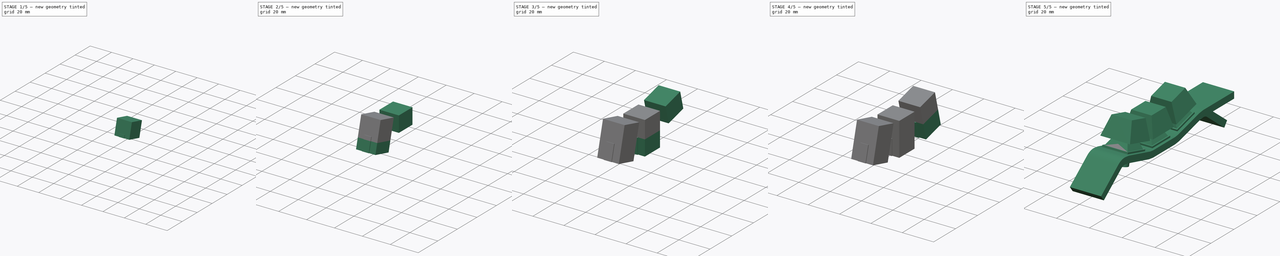
[diagram: build sequence overview — one tinted view per stage of 5, left to right]
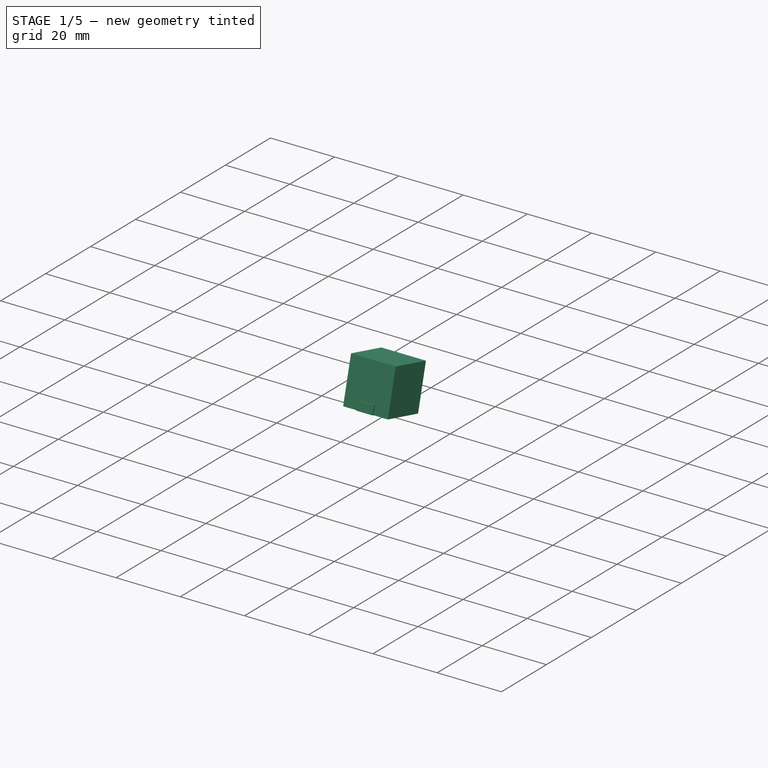
[diagram: stage 1 of 5 — iso view after this stage's code; geometry added in this stage tinted green]
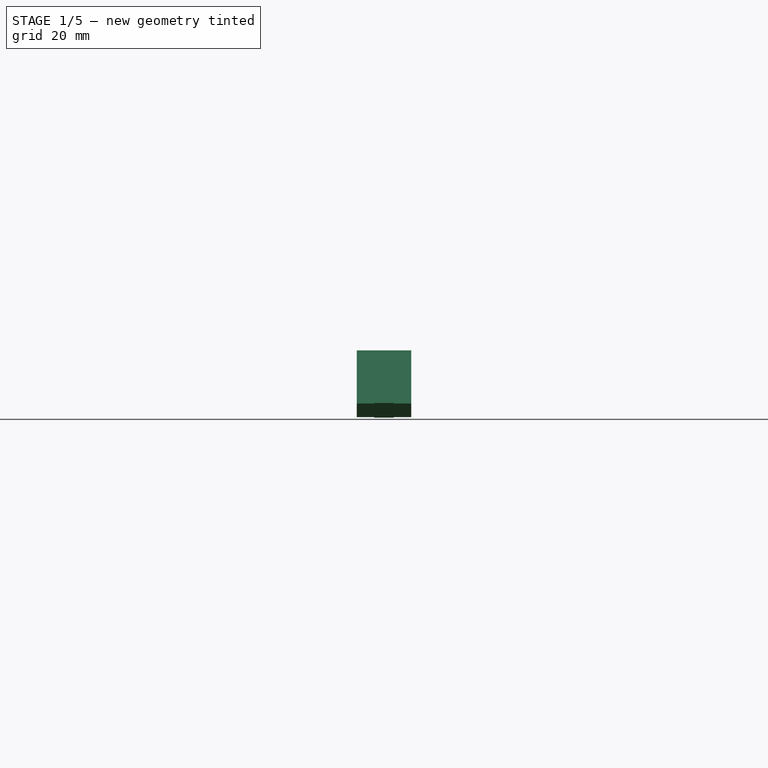
[diagram: stage 1 of 5 — front view after this stage's code; geometry added in this stage tinted green]
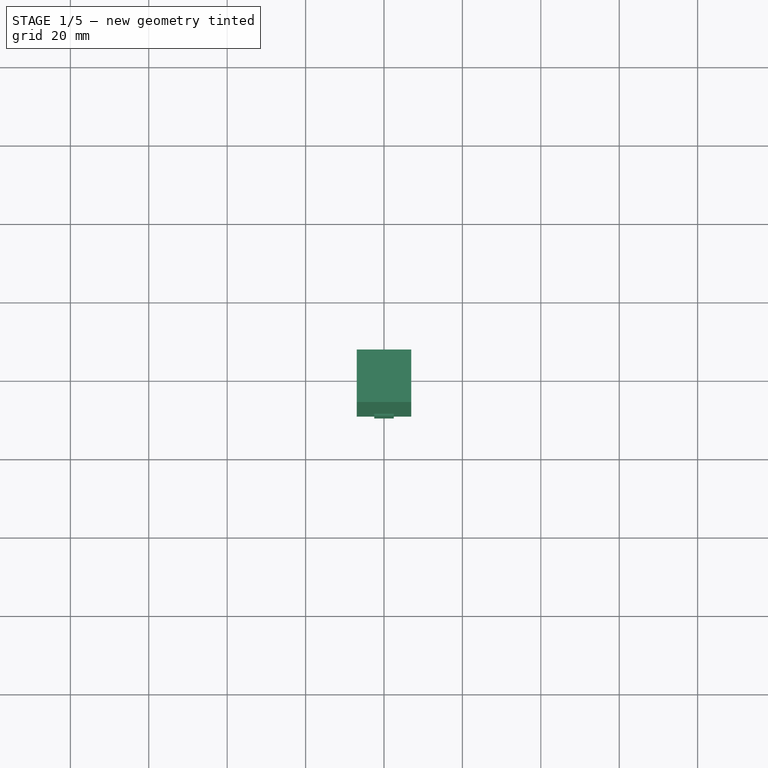
[diagram: stage 1 of 5 — top view after this stage's code; geometry added in this stage tinted green]
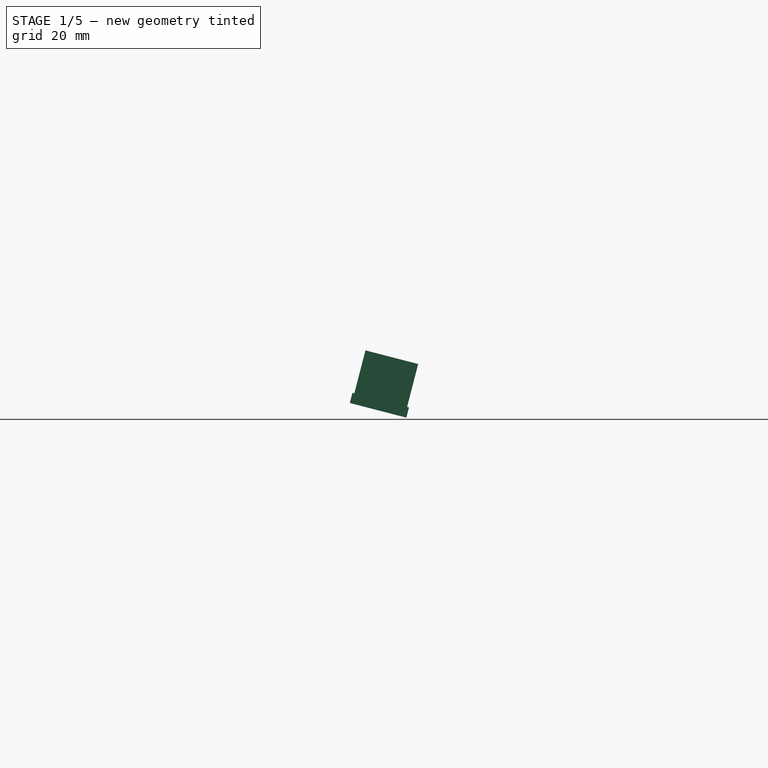
[diagram: stage 1 of 5 — right view after this stage's code; geometry added in this stage tinted green]
FCSTD DOCUMENT  (FreeCAD 0.21R33668 +26 (Git))
Label: KeyColumn
License: All rights reserved
LicenseURL: http://en.wikipedia.org/wiki/All_rights_reserved
objects: PartDesign::Pad×14, Sketcher::SketchObject×11, Part::Refine×6, PartDesign::Body×5, App::Link×4, PartDesign::CoordinateSystem×3, Part::Compound×2, Part::Cut×2, App::DocumentObjectGroup×1
note: 57 computed .brp shape members not serialized (recipe doc carries the construction recipe); baked Part::Feature solids carry a one-line shape summary decoded from their .brp
EXTERNAL_REF file=../components/MX-Latch-Subtractor.FCStd obj=Body001
EXTERNAL_REF file=../components/MX_Switches.FCStd obj=Body008

FEATURE [Sketcher::SketchObject] Sketch
  FullyConstrained = true
  MapMode = 5
  Placement = pos=(0,0,0) rot=(0.57735,0.57735,0.57735;2.0944rad)
  Support = -> [YZ_Plane]
  expr: Constraints[12] = 180 - 7.25
  expr: Constraints[13] = 180 - 7.25
  expr: Constraints[16] = 180 - 7.25
  expr: Constraints[18] = 180 - 7.25
  expr: Constraints[22] = 180 - 7.25
  expr: Constraints[6] = 19.05 mm / 2
  expr: Constraints[7] = 19.05 mm / 2
  expr: Constraints[9] = 180 - 7.25
  sketch-geometry (35):
    g0: LineSegment StartX=-9.525 StartY=2 StartZ=0 EndX=9.525 EndY=2 EndZ=0
    g1: LineSegment StartX=9.525 StartY=2 StartZ=0 EndX=12.1042 EndY=2.32812 EndZ=0
    g2: LineSegment StartX=12.1042 StartY=2.32812 StartZ=0 EndX=30.5474 EndY=7.09786 EndZ=0
    g3: LineSegment StartX=30.5474 StartY=7.09786 StartZ=0 EndX=33.1266 EndY=7.42597 EndZ=0
    g4: LineSegment StartX=-9.525 StartY=2 StartZ=0 EndX=-12.1042 EndY=2.32812 EndZ=0
    g5: LineSegment StartX=-12.1042 StartY=2.32812 StartZ=0 EndX=-30.5474 EndY=7.09786 EndZ=0
    g6: ArcOfCircle CenterX=34.2584 CenterY=-1.47035 CenterZ=0 NormalX=0 NormalY=0 NormalZ=1 AngleXU=0 Radius=8.96802 StartAngle=0.911935 EndAngle=1.69733
    g7: LineSegment StartX=-30.5474 StartY=7.09786 StartZ=0 EndX=-33.1266 EndY=7.42597 EndZ=0
    g8: ArcOfCircle CenterX=-34.2584 CenterY=-1.47035 CenterZ=0 NormalX=0 NormalY=0 NormalZ=1 AngleXU=0 Radius=8.96802 StartAngle=1.44426 EndAngle=2.22966
    g9: LineSegment StartX=-31.5489 StartY=3.22527 StartZ=0 EndX=-13.1057 EndY=-1.54447 EndZ=0
    g10: LineSegment StartX=-9.525 StartY=-2 StartZ=0 EndX=9.525 EndY=-2 EndZ=0
    g11: LineSegment StartX=13.1057 StartY=-1.54447 StartZ=0 EndX=31.5489 EndY=3.22527 EndZ=0
    g12: LineSegment StartX=12.1042 StartY=2.32812 StartZ=0 EndX=13.1057 EndY=-1.54447 EndZ=0
    g13: LineSegment StartX=-13.1057 StartY=-1.54447 StartZ=0 EndX=-12.1042 EndY=2.32812 EndZ=0
    g14: LineSegment StartX=-13.1057 StartY=-1.54447 StartZ=0 EndX=-9.525 EndY=-2 EndZ=0
    g15: LineSegment StartX=9.525 StartY=-2 StartZ=0 EndX=13.1057 EndY=-1.54447 EndZ=0
    g16: LineSegment StartX=9.525 StartY=2 StartZ=0 EndX=9.525 EndY=-2 EndZ=0
    g17: LineSegment StartX=-33.1266 StartY=7.42597 StartZ=0 EndX=-33.6274 EndY=3.48968 EndZ=0
    g18: LineSegment StartX=-31.5489 StartY=3.22527 StartZ=0 EndX=-33.6274 EndY=3.48968 EndZ=0
    g19: LineSegment StartX=33.1266 StartY=7.42597 StartZ=0 EndX=33.6274 EndY=3.48968 EndZ=0
    g20: LineSegment StartX=31.5489 StartY=3.22527 StartZ=0 EndX=33.6274 EndY=3.48968 EndZ=0
    g21: ArcOfCircle CenterX=34.2584 CenterY=-1.47035 CenterZ=0 NormalX=0 NormalY=0 NormalZ=1 AngleXU=0 Radius=5 StartAngle=0.911935 EndAngle=1.69733
    g22: ArcOfCircle CenterX=-34.2584 CenterY=-1.47035 CenterZ=0 NormalX=0 NormalY=0 NormalZ=1 AngleXU=0 Radius=5 StartAngle=1.44426 EndAngle=2.22966
    g23: LineSegment StartX=-39.7488 StartY=5.62057 StartZ=0 EndX=-37.3195 EndY=2.4831 EndZ=0
    g24: LineSegment StartX=37.3195 StartY=2.4831 StartZ=0 EndX=39.7488 EndY=5.62057 EndZ=0
    g25: LineSegment StartX=33.6274 StartY=3.48968 StartZ=0 EndX=34.2584 EndY=-1.47035 EndZ=0
    g26: LineSegment StartX=37.3195 StartY=2.4831 StartZ=0 EndX=34.2584 EndY=-1.47035 EndZ=0
    g27: LineSegment StartX=-33.6274 StartY=3.48968 StartZ=0 EndX=-34.2584 EndY=-1.47035 EndZ=0
    g28: LineSegment StartX=-37.3195 StartY=2.4831 StartZ=0 EndX=-34.2584 EndY=-1.47035 EndZ=0
    g29: LineSegment StartX=37.3195 StartY=2.4831 StartZ=0 EndX=52.3426 EndY=-9.14903 EndZ=0
    g30: LineSegment StartX=52.3426 StartY=-9.14903 StartZ=0 EndX=54.7719 EndY=-6.01155 EndZ=0
    g31: LineSegment StartX=54.7719 StartY=-6.01155 StartZ=0 EndX=39.7488 EndY=5.62057 EndZ=0
    g32: LineSegment StartX=-39.7488 StartY=5.62057 StartZ=0 EndX=-54.7719 EndY=-6.01155 EndZ=0
    g33: LineSegment StartX=-54.7719 StartY=-6.01155 StartZ=0 EndX=-52.3426 EndY=-9.14903 EndZ=0
    g34: LineSegment StartX=-52.3426 StartY=-9.14903 StartZ=0 EndX=-37.3195 EndY=2.4831 EndZ=0
  constraints (94):
    c: Horizontal(g0)
    c: Coincident(g1,g0)
    c: Coincident(g3,g2)
    c: Coincident(g4,g0)
    c: Coincident(g5,g4)
    c: DistanceY(g-1,g0) = 2
    c: DistanceX(g-1,g0) = 9.525
    c: DistanceX(g0,g-1) = 9.525
    c: Distance(g1) = 2.6
    c: Angle(g1,g0) = 3.01506
    c: Coincident(g2,g1)
    c: Distance(g2) = 19.05
    c: Angle(g2,g1) = 3.01506
    c: Angle(g0,g4) = 3.01506
    c: Distance(g4) = 2.6
    c: Distance(g5) = 19.05
    c: Angle(g4,g5) = 3.01506
    c: Distance(g3) = 2.6
    c: Angle(g2,g3) = 3.01506
    c: Coincident(g6,g3)
    c: Coincident(g7,g5)
    c: Distance(g7) = 2.6
    c: Angle(g7,g5) = 3.01506
    c: Coincident(g8,g7)
    c: Horizontal(g10)
    c: Parallel(g2,g11)
    c: Parallel(g9,g5)
    c: Equal(g5,g9)
    c: Equal(g0,g10)
    c: Equal(g2,g11)
    c: Distance(g0,g10) = 4
    c: Coincident(g12,g1)
    c: Coincident(g12,g11)
    c: Perpendicular(g11,g12)
    c: Distance(g12) = 4
    c: Coincident(g13,g9)
    c: Coincident(g13,g4)
    c: Perpendicular(g9,g13)
    c: Distance(g13) = 4
    c: Coincident(g14,g9)
    c: Coincident(g14,g10)
    c: Coincident(g15,g10)
    c: Coincident(g15,g11)
    c: Coincident(g16,g0)
    c: Coincident(g16,g10)
    c: Perpendicular(g10,g16)
    c: Coincident(g17,g7)
    c: Coincident(g18,g9)
    c: Coincident(g18,g17)
    c: Perpendicular(g18,g17)
    c: Parallel(g7,g18)
    c: Coincident(g19,g3)
    c: Coincident(g20,g11)
    c: Coincident(g20,g19)
    c: Parallel(g3,g20)
    c: Perpendicular(g19,g3)
    c: Coincident(g21,g6)
    c: Coincident(g21,g20)
    c: Coincident(g22,g8)
    c: Coincident(g22,g18)
    c: Coincident(g23,g8)
    c: Coincident(g23,g22)
    c: Coincident(g24,g21)
    c: Coincident(g24,g6)
    c: Coincident(g25,g20)
    c: Coincident(g25,g6)
    c: Coincident(g26,g21)
    c: Coincident(g26,g6)
    c: Parallel(g26,g24)
    c: Parallel(g19,g25)
    c: Coincident(g27,g18)
    c: Coincident(g27,g8)
    c: Coincident(g28,g22)
    c: Coincident(g28,g8)
    c: Parallel(g23,g28)
    c: Parallel(g27,g17)
    c: Distance(g28) = 5
    c: Distance(g26) = 5
    c: Angle(g27,g28) = 0.785398
    c: Angle(g26,g25) = 0.785398
    c: Tangent(g21,g29) = 1.5708
    c: Coincident(g29,g30)
    c: Coincident(g30,g31)
    c: Coincident(g31,g6)
    c: Tangent(g8,g32) = -1.5708
    c: Coincident(g32,g33)
    c: Coincident(g33,g34)
    c: Coincident(g34,g22)
    c: Perpendicular(g33,g32)
    c: Perpendicular(g34,g33)
    c: Perpendicular(g29,g30)
    c: Perpendicular(g31,g30)
    c: Distance(g31) = 19
    c: Distance(g32) = 19
FEATURE [PartDesign::Pad] Pad
  Direction = (1,-2e-16,3e-16)
  Length = 19
  Length2 = 10
  Midplane = true
  Placement = pos=(0,0,0) rot=(1,1,1;2.0944rad)
  Profile = -> Sketch
  ReferenceAxis = -> Sketch [N_Axis]
  Type = 0
FEATURE [Sketcher::SketchObject] Sketch033
  FullyConstrained = true
  MapMode = 5
  Support = -> [XY_Plane005]
  sketch-geometry (4):
    g0: LineSegment StartX=-7 StartY=7 StartZ=0 EndX=7 EndY=7 EndZ=0
    g1: LineSegment StartX=7 StartY=7 StartZ=0 EndX=7 EndY=-7 EndZ=0
    g2: LineSegment StartX=7 StartY=-7 StartZ=0 EndX=-7 EndY=-7 EndZ=0
    g3: LineSegment StartX=-7 StartY=-7 StartZ=0 EndX=-7 EndY=7 EndZ=0
  constraints (11):
    c: Coincident(g0,g1)
    c: Coincident(g1,g2)
    c: Coincident(g2,g3)
    c: Coincident(g3,g0)
    c: Horizontal(g0)
    c: Horizontal(g2)
    c: Vertical(g1)
    c: Vertical(g3)
    c: Symmetric(g0,g1,g-1)
    c: Equal(g0,g3)
    c: DistanceX(g0,g0) = 14
FEATURE [PartDesign::Pad] Pad010
  BaseFeature = -> Pad009
  Direction = (0,0,1)
  Length = 2.5
  Length2 = 100
  Profile = -> Sketch033
  Refine = true
  Reversed = true
  Type = 0
FEATURE [PartDesign::Plane] DatumPlane007
  Length = 60
  MapMode = 5
  Placement = pos=(0,0,-2.5) rot=(1,0,0;3.14159rad)
  ResizeMode = 0
  Support = -> [Pad010]
  Width = 60
FEATURE [Sketcher::SketchObject] Sketch030
  FullyConstrained = true
  MapMode = 5
  Placement = pos=(0,0,-2.5) rot=(1,0,0;3.14159rad)
  Support = -> [DatumPlane007]
  sketch-geometry (4):
    g0: LineSegment StartX=-7 StartY=7 StartZ=0 EndX=7 EndY=7 EndZ=0
    g1: LineSegment StartX=7 StartY=7 StartZ=0 EndX=7 EndY=-7 EndZ=0
    g2: LineSegment StartX=7 StartY=-7 StartZ=0 EndX=-7 EndY=-7 EndZ=0
    g3: LineSegment StartX=-7 StartY=-7 StartZ=0 EndX=-7 EndY=7 EndZ=0
  constraints (11):
    c: Coincident(g0,g1)
    c: Coincident(g1,g2)
    c: Coincident(g2,g3)
    c: Coincident(g3,g0)
    c: Horizontal(g0)
    c: Horizontal(g2)
    c: Vertical(g1)
    c: Vertical(g3)
    c: Equal(g0,g3)
    c: DistanceX(g0,g0) = 14
    c: Symmetric(g0,g1,g-1)
FEATURE [Sketcher::SketchObject] Sketch034
  AttachmentOffset = pos=(0,0,2.5) rot=(0,0,1;0rad)
  FullyConstrained = true
  MapMode = 5
  Placement = pos=(0,0,-5) rot=(1,0,0;3.14159rad)
  Support = -> [DatumPlane007]
  sketch-geometry (4):
    g0: LineSegment StartX=-5 StartY=5 StartZ=0 EndX=5 EndY=5 EndZ=0
    g1: LineSegment StartX=5 StartY=5 StartZ=0 EndX=5 EndY=-5 EndZ=0
    g2: LineSegment StartX=5 StartY=-5 StartZ=0 EndX=-5 EndY=-5 EndZ=0
    g3: LineSegment StartX=-5 StartY=-5 StartZ=0 EndX=-5 EndY=5 EndZ=0
  constraints (11):
    c: Coincident(g0,g1)
    c: Coincident(g1,g2)
    c: Coincident(g2,g3)
    c: Coincident(g3,g0)
    c: Horizontal(g0)
    c: Horizontal(g2)
    c: Vertical(g1)
    c: Vertical(g3)
    c: DistanceX(g0,g0) = 10
    c: Equal(g0,g3)
    c: Symmetric(g0,g1,g-1)
FEATURE [PartDesign::AdditiveLoft] AdditiveLoft006
  BaseFeature = -> Pad010
  Closed = false
  Profile = -> Sketch034
  Refine = true
  Ruled = false
  Sections = -> [Sketch030]
FEATURE [PartDesign::Plane] DatumPlane008
  Length = 60
  MapMode = 5
  Placement = pos=(0,0,-5) rot=(1,0,0;3.14159rad)
  ResizeMode = 0
  Support = -> [AdditiveLoft006]
  Width = 60
FEATURE [Sketcher::SketchObject] Sketch031
  FullyConstrained = true
  MapMode = 5
  Placement = pos=(0,0,-5) rot=(1,0,0;3.14159rad)
  Support = -> [DatumPlane008]
  sketch-geometry (1):
    g0: Circle CenterX=0 CenterY=0 CenterZ=0 NormalX=0 NormalY=0 NormalZ=1 AngleXU=0 Radius=4
  constraints (2):
    c: Coincident(g0,g-1)
    c: Radius(g0) = 4
FEATURE [PartDesign::Pad] Pad011
  BaseFeature = -> AdditiveLoft006
  Direction = (0,0,-1)
  Length = 3.3
  Length2 = 100
  Profile = -> Sketch031
  Refine = true
  Type = 0
FEATURE [Sketcher::SketchObject] Sketch035
  FullyConstrained = true
  MapMode = 5
  Placement = pos=(0,0,1) rot=(0,0,1;0rad)
  sketch-geometry (4):
    g0: LineSegment StartX=-7 StartY=7 StartZ=0 EndX=7 EndY=7 EndZ=0
    g1: LineSegment StartX=7 StartY=7 StartZ=0 EndX=7 EndY=-7 EndZ=0
    g2: LineSegment StartX=7 StartY=-7 StartZ=0 EndX=-7 EndY=-7 EndZ=0
    g3: LineSegment StartX=-7 StartY=-7 StartZ=0 EndX=-7 EndY=7 EndZ=0
  constraints (11):
    c: Coincident(g0,g1)
    c: Coincident(g1,g2)
    c: Coincident(g2,g3)
    c: Coincident(g3,g0)
    c: Horizontal(g0)
    c: Horizontal(g2)
    c: Vertical(g1)
    c: Vertical(g3)
    c: Symmetric(g0,g1,g-1)
    c: Equal(g0,g3)
    c: DistanceX(g0,g0) = 14
FEATURE [Sketcher::SketchObject] Sketch036
  AttachmentOffset = pos=(0,0,5.6) rot=(0,0,1;0rad)
  FullyConstrained = true
  MapMode = 5
  Placement = pos=(0,0,6.6) rot=(0,0,1;0rad)
  expr: .AttachmentOffset.Base.z = 11.6 - 5 - 1
  sketch-geometry (4):
    g0: LineSegment StartX=-4 StartY=4 StartZ=0 EndX=4 EndY=4 EndZ=0
    g1: LineSegment StartX=4 StartY=4 StartZ=0 EndX=4 EndY=-4 EndZ=0
    g2: LineSegment StartX=4 StartY=-4 StartZ=0 EndX=-4 EndY=-4 EndZ=0
    g3: LineSegment StartX=-4 StartY=-4 StartZ=0 EndX=-4 EndY=4 EndZ=0
  constraints (11):
    c: Coincident(g0,g1)
    c: Coincident(g1,g2)
    c: Coincident(g2,g3)
    c: Coincident(g3,g0)
    c: Horizontal(g0)
    c: Horizontal(g2)
    c: Vertical(g1)
    c: Vertical(g3)
    c: Equal(g0,g3)
    c: Symmetric(g0,g1,g-1)
    c: DistanceX(g0,g0) = 8
FEATURE [PartDesign::AdditiveLoft] AdditiveLoft007
  BaseFeature = -> Pad011
  Closed = false
  Profile = -> Sketch035
  Refine = true
  Ruled = false
  Sections = -> [Sketch036]
FEATURE [Sketcher::SketchObject] Sketch037
  AttachmentOffset = pos=(0,0,16) rot=(0,0,1;0rad)
  FullyConstrained = true
  MapMode = 5
  Placement = pos=(0,0,17) rot=(0,0,1;0rad)
  expr: Constraints[8] = 36.2 mm - 5.73 mm
  sketch-geometry (4):
    g0: LineSegment StartX=-15.235 StartY=6.185 StartZ=0 EndX=15.235 EndY=6.185 EndZ=0
    g1: LineSegment StartX=15.235 StartY=6.185 StartZ=0 EndX=15.235 EndY=-6.185 EndZ=0
    g2: LineSegment StartX=15.235 StartY=-6.185 StartZ=0 EndX=-15.235 EndY=-6.185 EndZ=0
    g3: LineSegment StartX=-15.235 StartY=-6.185 StartZ=0 EndX=-15.235 EndY=6.185 EndZ=0
  constraints (11):
    c: Coincident(g0,g1)
    c: Coincident(g1,g2)
    c: Coincident(g2,g3)
    c: Coincident(g3,g0)
    c: Horizontal(g0)
    c: Horizontal(g2)
    c: Vertical(g1)
    c: Vertical(g3)
    c: DistanceX(g0,g0) = 30.47
    c: Symmetric(g0,g1,g-1)
    c: DistanceY(g1,g1) = 12.37
FEATURE [Sketcher::SketchObject] Sketch038
  AttachmentOffset = pos=(0,0,4.61) rot=(0,0,1;0rad)
  FullyConstrained = true
  MapMode = 5
  Placement = pos=(0,0,5.61) rot=(0,0,1;0rad)
  expr: .AttachmentOffset.Base.z = 16 - 9.39 - 2
  expr: Constraints[8] = 18.2 mm * 2
  sketch-geometry (4):
    g0: LineSegment StartX=-18.2 StartY=9.05 StartZ=0 EndX=18.2 EndY=9.05 EndZ=0
    g1: LineSegment StartX=18.2 StartY=9.05 StartZ=0 EndX=18.2 EndY=-9.05 EndZ=0
    g2: LineSegment StartX=18.2 StartY=-9.05 StartZ=0 EndX=-18.2 EndY=-9.05 EndZ=0
    g3: LineSegment StartX=-18.2 StartY=-9.05 StartZ=0 EndX=-18.2 EndY=9.05 EndZ=0
  constraints (11):
    c: Coincident(g0,g1)
    c: Coincident(g1,g2)
    c: Coincident(g2,g3)
    c: Coincident(g3,g0)
    c: Horizontal(g0)
    c: Horizontal(g2)
    c: Vertical(g1)
    c: Vertical(g3)
    c: DistanceX(g0,g0) = 36.4
    c: Symmetric(g0,g1,g-1)
    c: DistanceY(g1,g1) = 18.1
FEATURE [PartDesign::AdditiveLoft] AdditiveLoft008
  BaseFeature = -> AdditiveLoft007
  Closed = false
  Profile = -> Sketch037
  Refine = true
  Ruled = false
  Sections = -> [Sketch038]
FEATURE [PartDesign::Body] Body005  label="MXSwitch200"
  Group = -> [Sketch032,Pad009,Sketch033,Pad010,DatumPlane007,Sketch034,Sketch030,AdditiveLoft006,DatumPlane008,Sketch031,Pad011,Sketch035,Sketch036,AdditiveLoft007,Sketch037,Sketch038,AdditiveLoft008]
  Origin = -> Origin005
  Tip = -> AdditiveLoft008
FEATURE [Sketcher::SketchObject] Sketch041
  FullyConstrained = true
  MapMode = 5
  Support = -> [XY_Plane006]
  sketch-geometry (4):
    g0: LineSegment StartX=-7.8 StartY=7.8 StartZ=0 EndX=7.8 EndY=7.8 EndZ=0
    g1: LineSegment StartX=7.8 StartY=7.8 StartZ=0 EndX=7.8 EndY=-7.8 EndZ=0
    g2: LineSegment StartX=7.8 StartY=-7.8 StartZ=0 EndX=-7.8 EndY=-7.8 EndZ=0
    g3: LineSegment StartX=-7.8 StartY=-7.8 StartZ=0 EndX=-7.8 EndY=7.8 EndZ=0
  constraints (11):
    c: Coincident(g0,g1)
    c: Coincident(g1,g2)
    c: Coincident(g2,g3)
    c: Coincident(g3,g0)
    c: Horizontal(g0)
    c: Horizontal(g2)
    c: Vertical(g1)
    c: Vertical(g3)
    c: DistanceX(g0,g0) = 15.6
    c: Equal(g0,g3)
    c: Symmetric(g0,g1,g-1)
FEATURE [PartDesign::Pad] Pad012
  Direction = (0,0,1)
  Length = 1
  Length2 = 100
  Profile = -> Sketch041
  Refine = true
  Type = 0
FEATURE [Sketcher::SketchObject] Sketch042
  FullyConstrained = true
  MapMode = 5
  Support = -> [XY_Plane006]
  sketch-geometry (4):
    g0: LineSegment StartX=-7 StartY=7 StartZ=0 EndX=7 EndY=7 EndZ=0
    g1: LineSegment StartX=7 StartY=7 StartZ=0 EndX=7 EndY=-7 EndZ=0
    g2: LineSegment StartX=7 StartY=-7 StartZ=0 EndX=-7 EndY=-7 EndZ=0
    g3: LineSegment StartX=-7 StartY=-7 StartZ=0 EndX=-7 EndY=7 EndZ=0
  constraints (11):
    c: Coincident(g0,g1)
    c: Coincident(g1,g2)
    c: Coincident(g2,g3)
    c: Coincident(g3,g0)
    c: Horizontal(g0)
    c: Horizontal(g2)
    c: Vertical(g1)
    c: Vertical(g3)
    c: Symmetric(g0,g1,g-1)
    c: Equal(g0,g3)
    c: DistanceX(g0,g0) = 14
FEATURE [PartDesign::Pad] Pad013
  BaseFeature = -> Pad012
  Direction = (0,0,1)
  Length = 2.5
  Length2 = 100
  Profile = -> Sketch042
  Refine = true
  Reversed = true
  Type = 0
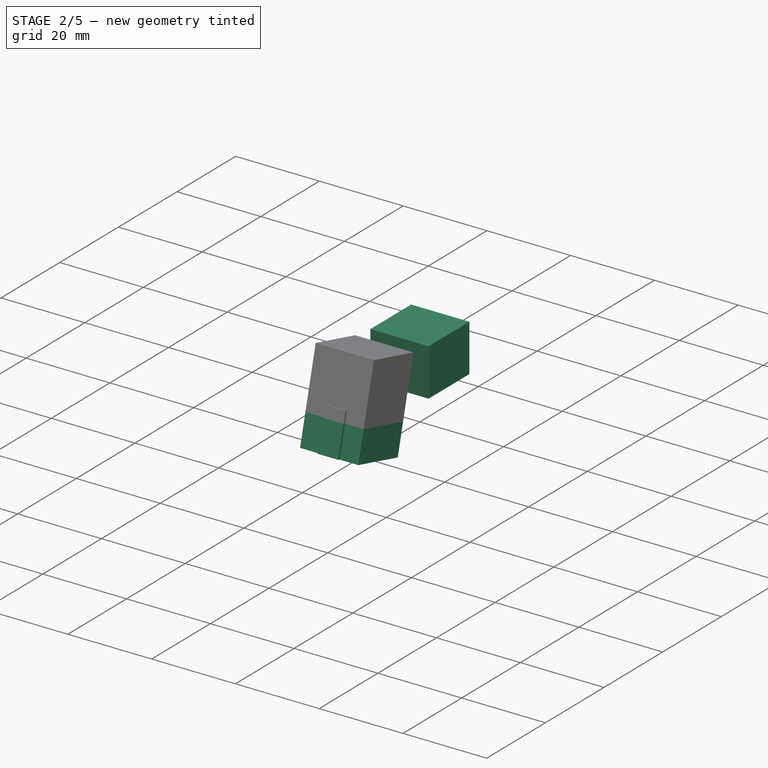
[diagram: stage 2 of 5 — iso view after this stage's code; geometry added in this stage tinted green]
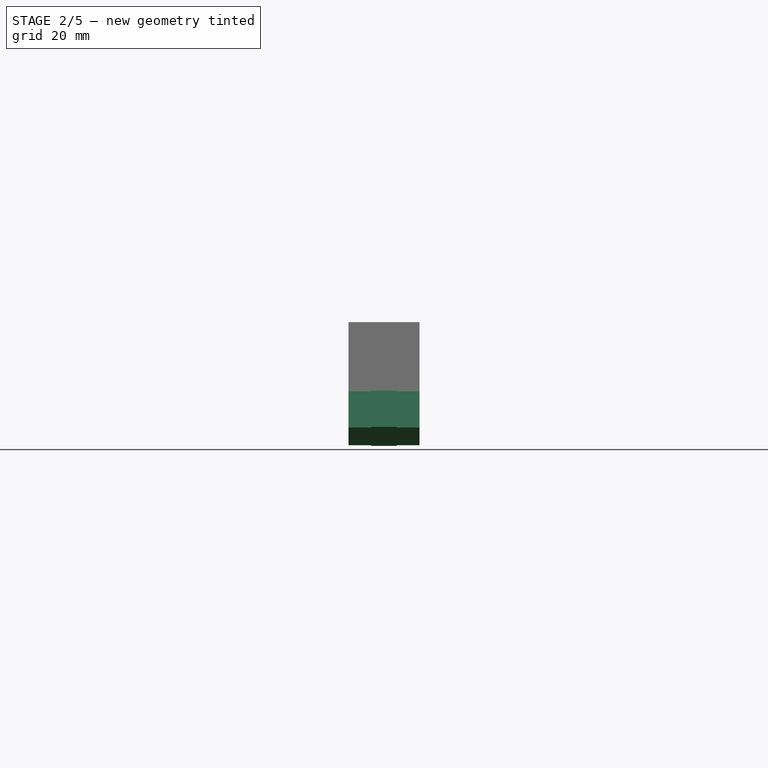
[diagram: stage 2 of 5 — front view after this stage's code; geometry added in this stage tinted green]
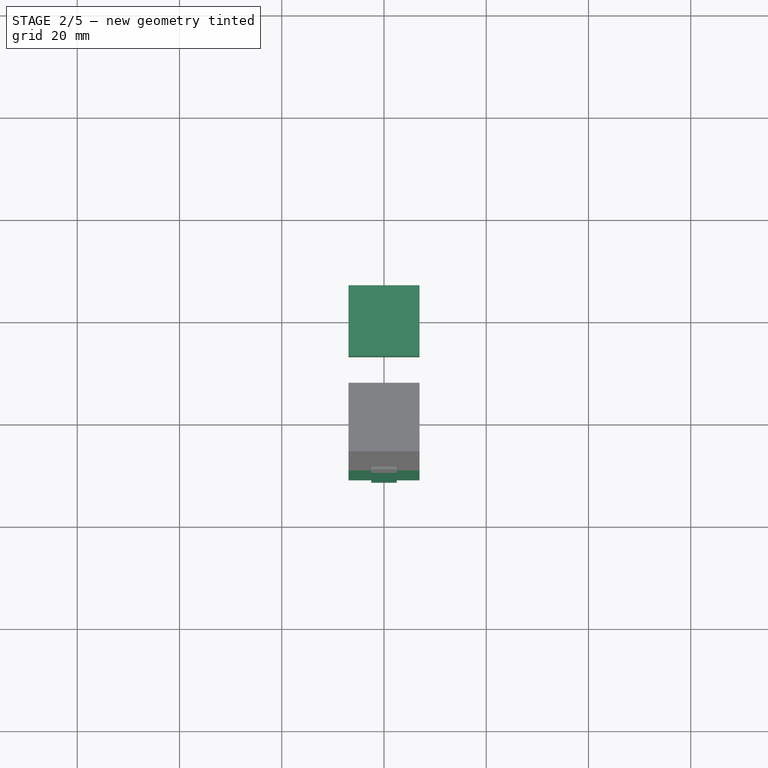
[diagram: stage 2 of 5 — top view after this stage's code; geometry added in this stage tinted green]
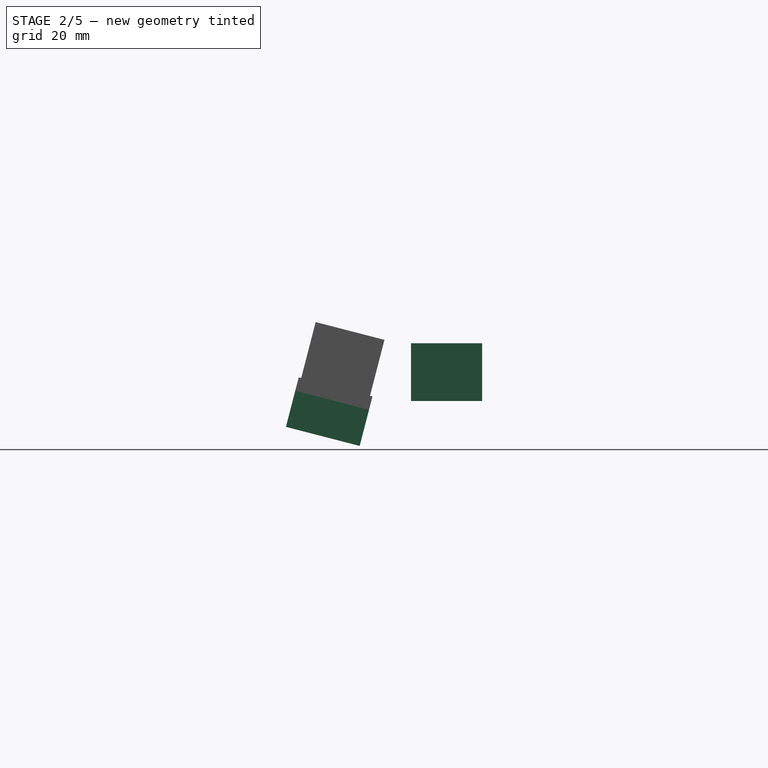
[diagram: stage 2 of 5 — right view after this stage's code; geometry added in this stage tinted green]
FEATURE [PartDesign::Plane] DatumPlane001
  Length = 60
  MapMode = 5
  Placement = pos=(0,0,-2.5) rot=(1,0,0;3.14159rad)
  ResizeMode = 0
  Support = -> [Pad004]
  Width = 60
FEATURE [Sketcher::SketchObject] Sketch016
  AttachmentOffset = pos=(0,0,2.5) rot=(0,0,1;0rad)
  FullyConstrained = true
  MapMode = 5
  Placement = pos=(0,0,-5) rot=(1,0,0;3.14159rad)
  Support = -> [DatumPlane001]
  sketch-geometry (4):
    g0: LineSegment StartX=-5 StartY=5 StartZ=0 EndX=5 EndY=5 EndZ=0
    g1: LineSegment StartX=5 StartY=5 StartZ=0 EndX=5 EndY=-5 EndZ=0
    g2: LineSegment StartX=5 StartY=-5 StartZ=0 EndX=-5 EndY=-5 EndZ=0
    g3: LineSegment StartX=-5 StartY=-5 StartZ=0 EndX=-5 EndY=5 EndZ=0
  constraints (11):
    c: Coincident(g0,g1)
    c: Coincident(g1,g2)
    c: Coincident(g2,g3)
    c: Coincident(g3,g0)
    c: Horizontal(g0)
    c: Horizontal(g2)
    c: Vertical(g1)
    c: Vertical(g3)
    c: DistanceX(g0,g0) = 10
    c: Equal(g0,g3)
    c: Symmetric(g0,g1,g-1)
FEATURE [Sketcher::SketchObject] Sketch006
  FullyConstrained = true
  MapMode = 5
  Placement = pos=(0,0,-2.5) rot=(1,0,0;3.14159rad)
  Support = -> [DatumPlane001]
  sketch-geometry (4):
    g0: LineSegment StartX=-7 StartY=7 StartZ=0 EndX=7 EndY=7 EndZ=0
    g1: LineSegment StartX=7 StartY=7 StartZ=0 EndX=7 EndY=-7 EndZ=0
    g2: LineSegment StartX=7 StartY=-7 StartZ=0 EndX=-7 EndY=-7 EndZ=0
    g3: LineSegment StartX=-7 StartY=-7 StartZ=0 EndX=-7 EndY=7 EndZ=0
  constraints (11):
    c: Coincident(g0,g1)
    c: Coincident(g1,g2)
    c: Coincident(g2,g3)
    c: Coincident(g3,g0)
    c: Horizontal(g0)
    c: Horizontal(g2)
    c: Vertical(g1)
    c: Vertical(g3)
    c: Equal(g0,g3)
    c: DistanceX(g0,g0) = 14
    c: Symmetric(g0,g1,g-1)
FEATURE [PartDesign::AdditiveLoft] AdditiveLoft
  BaseFeature = -> Pad004
  Closed = false
  Profile = -> Sketch016
  Refine = true
  Ruled = false
  Sections = -> [Sketch006]
FEATURE [PartDesign::Plane] DatumPlane002
  Length = 60
  MapMode = 5
  Placement = pos=(0,0,-5) rot=(1,0,0;3.14159rad)
  ResizeMode = 0
  Support = -> [AdditiveLoft]
  Width = 60
FEATURE [Sketcher::SketchObject] Sketch007
  FullyConstrained = true
  MapMode = 5
  Placement = pos=(0,0,-5) rot=(1,0,0;3.14159rad)
  Support = -> [DatumPlane002]
  sketch-geometry (1):
    g0: Circle CenterX=0 CenterY=0 CenterZ=0 NormalX=0 NormalY=0 NormalZ=1 AngleXU=0 Radius=4
  constraints (2):
    c: Coincident(g0,g-1)
    c: Radius(g0) = 4
FEATURE [PartDesign::Pad] Pad005
  BaseFeature = -> AdditiveLoft
  Direction = (0,0,-1)
  Length = 3.3
  Length2 = 100
  Profile = -> Sketch007
  Refine = true
  Type = 0
FEATURE [Sketcher::SketchObject] Sketch017
  FullyConstrained = true
  MapMode = 5
  Placement = pos=(0,0,1) rot=(0,0,1;0rad)
  sketch-geometry (4):
    g0: LineSegment StartX=-7 StartY=7 StartZ=0 EndX=7 EndY=7 EndZ=0
    g1: LineSegment StartX=7 StartY=7 StartZ=0 EndX=7 EndY=-7 EndZ=0
    g2: LineSegment StartX=7 StartY=-7 StartZ=0 EndX=-7 EndY=-7 EndZ=0
    g3: LineSegment StartX=-7 StartY=-7 StartZ=0 EndX=-7 EndY=7 EndZ=0
  constraints (11):
    c: Coincident(g0,g1)
    c: Coincident(g1,g2)
    c: Coincident(g2,g3)
    c: Coincident(g3,g0)
    c: Horizontal(g0)
    c: Horizontal(g2)
    c: Vertical(g1)
    c: Vertical(g3)
    c: Symmetric(g0,g1,g-1)
    c: Equal(g0,g3)
    c: DistanceX(g0,g0) = 14
FEATURE [Sketcher::SketchObject] Sketch018
  AttachmentOffset = pos=(0,0,5.6) rot=(0,0,1;0rad)
  FullyConstrained = true
  MapMode = 5
  Placement = pos=(0,0,6.6) rot=(0,0,1;0rad)
  expr: .AttachmentOffset.Base.z = 11.6 - 5 - 1
  sketch-geometry (4):
    g0: LineSegment StartX=-4 StartY=4 StartZ=0 EndX=4 EndY=4 EndZ=0
    g1: LineSegment StartX=4 StartY=4 StartZ=0 EndX=4 EndY=-4 EndZ=0
    g2: LineSegment StartX=4 StartY=-4 StartZ=0 EndX=-4 EndY=-4 EndZ=0
    g3: LineSegment StartX=-4 StartY=-4 StartZ=0 EndX=-4 EndY=4 EndZ=0
  constraints (11):
    c: Coincident(g0,g1)
    c: Coincident(g1,g2)
    c: Coincident(g2,g3)
    c: Coincident(g3,g0)
    c: Horizontal(g0)
    c: Horizontal(g2)
    c: Vertical(g1)
    c: Vertical(g3)
    c: Equal(g0,g3)
    c: Symmetric(g0,g1,g-1)
    c: DistanceX(g0,g0) = 8
FEATURE [PartDesign::AdditiveLoft] AdditiveLoft001
  BaseFeature = -> Pad005
  Closed = false
  Profile = -> Sketch017
  Refine = true
  Ruled = false
  Sections = -> [Sketch018]
FEATURE [Sketcher::SketchObject] Sketch019
  AttachmentOffset = pos=(0,0,16) rot=(0,0,1;0rad)
  FullyConstrained = true
  MapMode = 5
  Placement = pos=(0,0,17) rot=(0,0,1;0rad)
  sketch-geometry (4):
    g0: LineSegment StartX=-6.185 StartY=6.185 StartZ=0 EndX=6.185 EndY=6.185 EndZ=0
    g1: LineSegment StartX=6.185 StartY=6.185 StartZ=0 EndX=6.185 EndY=-6.185 EndZ=0
    g2: LineSegment StartX=6.185 StartY=-6.185 StartZ=0 EndX=-6.185 EndY=-6.185 EndZ=0
    g3: LineSegment StartX=-6.185 StartY=-6.185 StartZ=0 EndX=-6.185 EndY=6.185 EndZ=0
  constraints (11):
    c: Coincident(g0,g1)
    c: Coincident(g1,g2)
    c: Coincident(g2,g3)
    c: Coincident(g3,g0)
    c: Horizontal(g0)
    c: Horizontal(g2)
    c: Vertical(g1)
    c: Vertical(g3)
    c: DistanceX(g0,g0) = 12.37
    c: Equal(g0,g3)
    c: Symmetric(g0,g1,g-1)
FEATURE [Sketcher::SketchObject] Sketch020
  AttachmentOffset = pos=(0,0,4.61) rot=(0,0,1;0rad)
  FullyConstrained = true
  MapMode = 5
  Placement = pos=(0,0,5.61) rot=(0,0,1;0rad)
  expr: .AttachmentOffset.Base.z = 16 - 9.39 - 2
  sketch-geometry (4):
    g0: LineSegment StartX=-9.05 StartY=9.05 StartZ=0 EndX=9.05 EndY=9.05 EndZ=0
    g1: LineSegment StartX=9.05 StartY=9.05 StartZ=0 EndX=9.05 EndY=-9.05 EndZ=0
    g2: LineSegment StartX=9.05 StartY=-9.05 StartZ=0 EndX=-9.05 EndY=-9.05 EndZ=0
    g3: LineSegment StartX=-9.05 StartY=-9.05 StartZ=0 EndX=-9.05 EndY=9.05 EndZ=0
  constraints (11):
    c: Coincident(g0,g1)
    c: Coincident(g1,g2)
    c: Coincident(g2,g3)
    c: Coincident(g3,g0)
    c: Horizontal(g0)
    c: Horizontal(g2)
    c: Vertical(g1)
    c: Vertical(g3)
    c: DistanceX(g0,g0) = 18.1
    c: Equal(g0,g3)
    c: Symmetric(g0,g1,g-1)
FEATURE [PartDesign::AdditiveLoft] AdditiveLoft002
  BaseFeature = -> AdditiveLoft001
  Closed = false
  Profile = -> Sketch019
  Refine = true
  Ruled = false
  Sections = -> [Sketch020]
FEATURE [PartDesign::Body] Body003  label="MXSwitch100"
  Group = -> [Sketch014,Pad003,Sketch015,Pad004,DatumPlane001,Sketch016,Sketch006,AdditiveLoft,DatumPlane002,Sketch007,Pad005,Sketch017,Sketch018,AdditiveLoft001,Sketch019,Sketch020,AdditiveLoft002]
  Origin = -> Origin003
  Tip = -> AdditiveLoft002
FEATURE [Sketcher::SketchObject] Sketch023
  FullyConstrained = true
  MapMode = 5
  Support = -> [XY_Plane004]
  sketch-geometry (4):
    g0: LineSegment StartX=-7.8 StartY=7.8 StartZ=0 EndX=7.8 EndY=7.8 EndZ=0
    g1: LineSegment StartX=7.8 StartY=7.8 StartZ=0 EndX=7.8 EndY=-7.8 EndZ=0
    g2: LineSegment StartX=7.8 StartY=-7.8 StartZ=0 EndX=-7.8 EndY=-7.8 EndZ=0
    g3: LineSegment StartX=-7.8 StartY=-7.8 StartZ=0 EndX=-7.8 EndY=7.8 EndZ=0
  constraints (11):
    c: Coincident(g0,g1)
    c: Coincident(g1,g2)
    c: Coincident(g2,g3)
    c: Coincident(g3,g0)
    c: Horizontal(g0)
    c: Horizontal(g2)
    c: Vertical(g1)
    c: Vertical(g3)
    c: DistanceX(g0,g0) = 15.6
    c: Equal(g0,g3)
    c: Symmetric(g0,g1,g-1)
FEATURE [PartDesign::Pad] Pad006
  Direction = (0,0,1)
  Length = 1
  Length2 = 100
  Profile = -> Sketch023
  Refine = true
  Type = 0
FEATURE [Sketcher::SketchObject] Sketch024
  FullyConstrained = true
  MapMode = 5
  Support = -> [XY_Plane004]
  sketch-geometry (4):
    g0: LineSegment StartX=-7 StartY=7 StartZ=0 EndX=7 EndY=7 EndZ=0
    g1: LineSegment StartX=7 StartY=7 StartZ=0 EndX=7 EndY=-7 EndZ=0
    g2: LineSegment StartX=7 StartY=-7 StartZ=0 EndX=-7 EndY=-7 EndZ=0
    g3: LineSegment StartX=-7 StartY=-7 StartZ=0 EndX=-7 EndY=7 EndZ=0
  constraints (11):
    c: Coincident(g0,g1)
    c: Coincident(g1,g2)
    c: Coincident(g2,g3)
    c: Coincident(g3,g0)
    c: Horizontal(g0)
    c: Horizontal(g2)
    c: Vertical(g1)
    c: Vertical(g3)
    c: Symmetric(g0,g1,g-1)
    c: Equal(g0,g3)
    c: DistanceX(g0,g0) = 14
FEATURE [PartDesign::Pad] Pad007
  BaseFeature = -> Pad006
  Direction = (0,0,1)
  Length = 2.5
  Length2 = 100
  Profile = -> Sketch024
  Refine = true
  Reversed = true
  Type = 0
FEATURE [PartDesign::Plane] DatumPlane010
  Length = 60.1661
  MapMode = 5
  Placement = pos=(0,0,-2.5) rot=(1,0,0;3.14159rad)
  ResizeMode = 0
  Support = -> [Pad013]
  Width = 61.8411
FEATURE [Sketcher::SketchObject] Sketch039
  FullyConstrained = true
  MapMode = 5
  Placement = pos=(0,0,-2.5) rot=(1,0,0;3.14159rad)
  Support = -> [DatumPlane010]
  sketch-geometry (4):
    g0: LineSegment StartX=-7 StartY=7 StartZ=0 EndX=7 EndY=7 EndZ=0
    g1: LineSegment StartX=7 StartY=7 StartZ=0 EndX=7 EndY=-7 EndZ=0
    g2: LineSegment StartX=7 StartY=-7 StartZ=0 EndX=-7 EndY=-7 EndZ=0
    g3: LineSegment StartX=-7 StartY=-7 StartZ=0 EndX=-7 EndY=7 EndZ=0
  constraints (11):
    c: Coincident(g0,g1)
    c: Coincident(g1,g2)
    c: Coincident(g2,g3)
    c: Coincident(g3,g0)
    c: Horizontal(g0)
    c: Horizontal(g2)
    c: Vertical(g1)
    c: Vertical(g3)
    c: Equal(g0,g3)
    c: DistanceX(g0,g0) = 14
    c: Symmetric(g0,g1,g-1)
FEATURE [Sketcher::SketchObject] Sketch043
  AttachmentOffset = pos=(0,0,2.5) rot=(0,0,1;0rad)
  FullyConstrained = true
  MapMode = 5
  Placement = pos=(0,0,-5) rot=(1,0,0;3.14159rad)
  Support = -> [DatumPlane010]
  sketch-geometry (4):
    g0: LineSegment StartX=-5 StartY=5 StartZ=0 EndX=5 EndY=5 EndZ=0
    g1: LineSegment StartX=5 StartY=5 StartZ=0 EndX=5 EndY=-5 EndZ=0
    g2: LineSegment StartX=5 StartY=-5 StartZ=0 EndX=-5 EndY=-5 EndZ=0
    g3: LineSegment StartX=-5 StartY=-5 StartZ=0 EndX=-5 EndY=5 EndZ=0
  constraints (11):
    c: Coincident(g0,g1)
    c: Coincident(g1,g2)
    c: Coincident(g2,g3)
    c: Coincident(g3,g0)
    c: Horizontal(g0)
    c: Horizontal(g2)
    c: Vertical(g1)
    c: Vertical(g3)
    c: DistanceX(g0,g0) = 10
    c: Equal(g0,g3)
    c: Symmetric(g0,g1,g-1)
FEATURE [PartDesign::AdditiveLoft] AdditiveLoft009
  BaseFeature = -> Pad013
  Closed = false
  Profile = -> Sketch043
  Refine = true
  Ruled = false
  Sections = -> [Sketch039]
FEATURE [PartDesign::Plane] DatumPlane011
  Length = 60.1661
  MapMode = 5
  Placement = pos=(0,0,-5) rot=(1,0,0;3.14159rad)
  ResizeMode = 0
  Support = -> [AdditiveLoft009]
  Width = 61.8411
FEATURE [Sketcher::SketchObject] Sketch040
  FullyConstrained = true
  MapMode = 5
  Placement = pos=(0,0,-5) rot=(1,0,0;3.14159rad)
  Support = -> [DatumPlane011]
  sketch-geometry (1):
    g0: Circle CenterX=0 CenterY=0 CenterZ=0 NormalX=0 NormalY=0 NormalZ=1 AngleXU=0 Radius=4
  constraints (2):
    c: Coincident(g0,g-1)
    c: Radius(g0) = 4
FEATURE [PartDesign::Pad] Pad014
  BaseFeature = -> AdditiveLoft009
  Direction = (0,0,-1)
  Length = 3.3
  Length2 = 100
  Profile = -> Sketch040
  Refine = true
  Type = 0
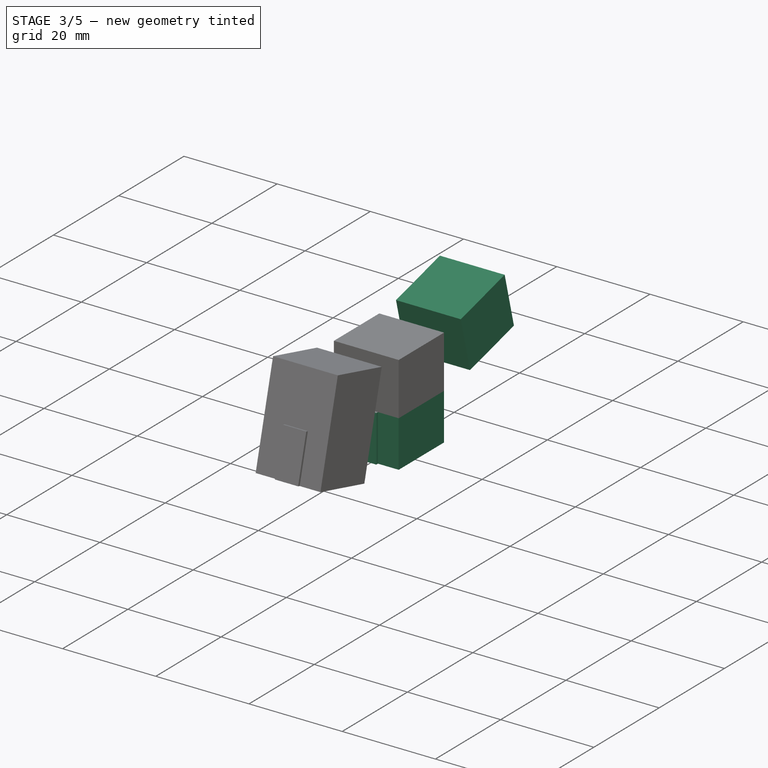
[diagram: stage 3 of 5 — iso view after this stage's code; geometry added in this stage tinted green]
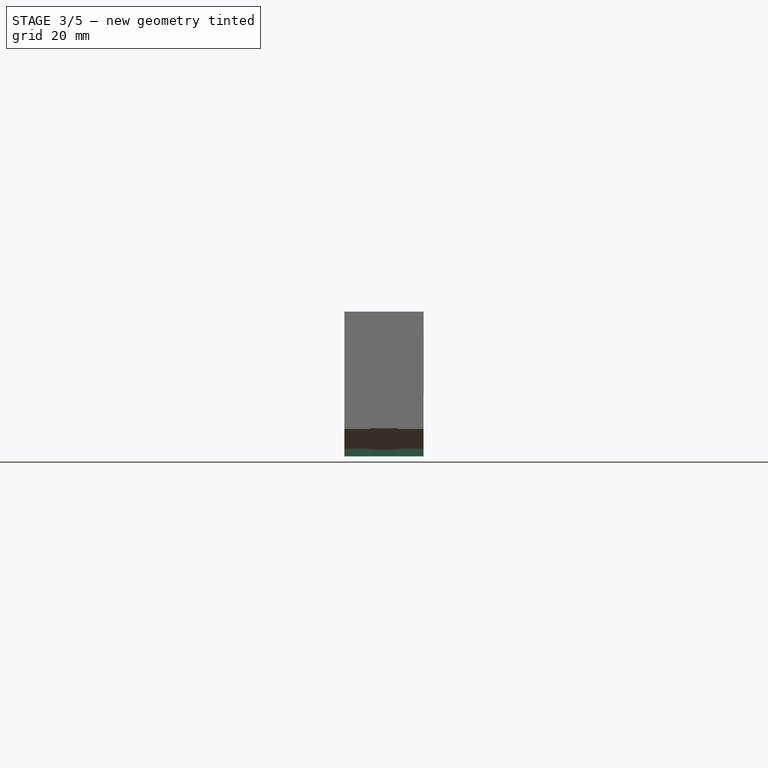
[diagram: stage 3 of 5 — front view after this stage's code; geometry added in this stage tinted green]
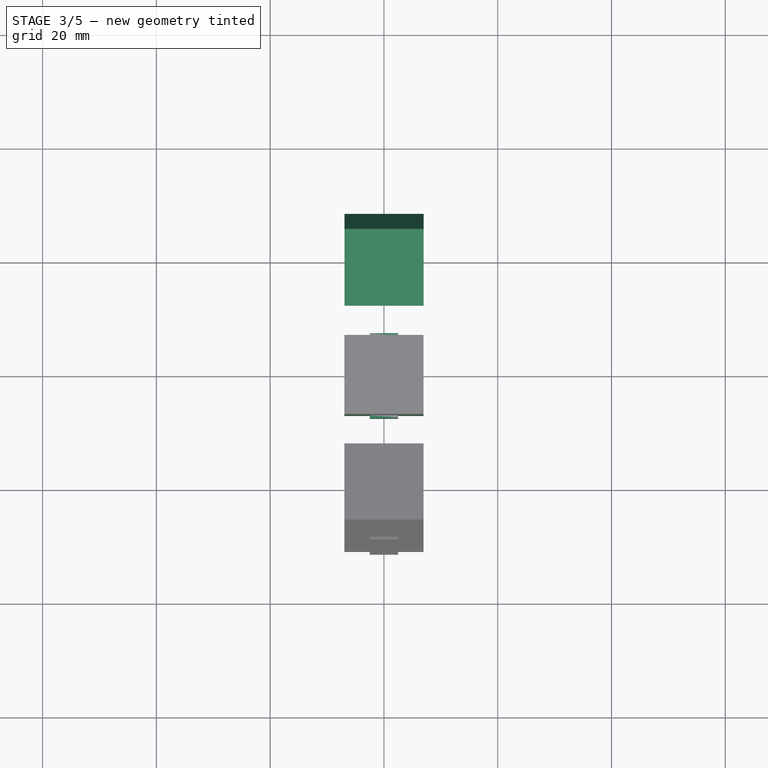
[diagram: stage 3 of 5 — top view after this stage's code; geometry added in this stage tinted green]
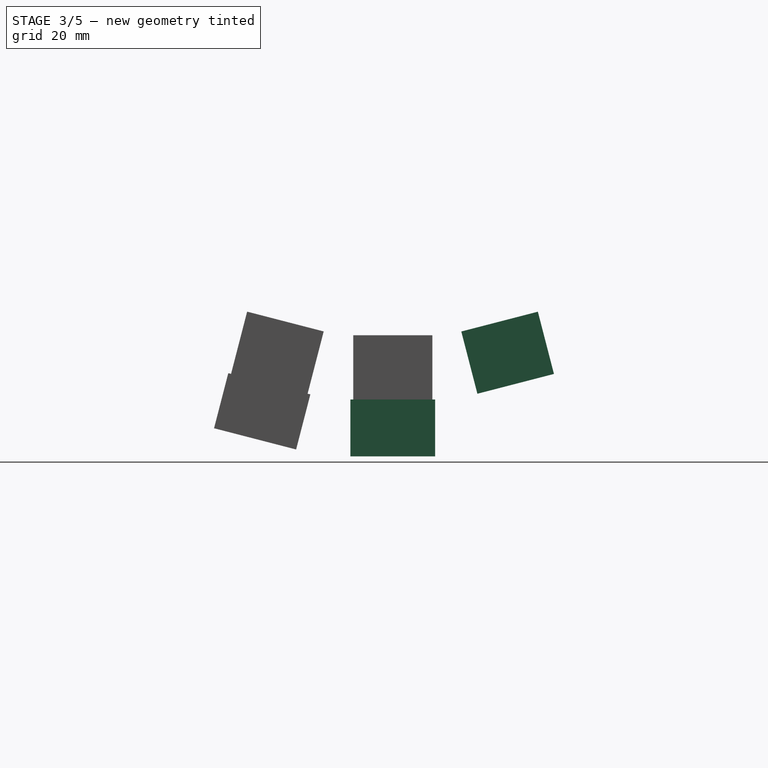
[diagram: stage 3 of 5 — right view after this stage's code; geometry added in this stage tinted green]
FEATURE [PartDesign::Body] Body  label="KeyColumnBase"
  Group = -> [Sketch,Pad]
  Origin = -> Origin
  Tip = -> Pad
FEATURE [PartDesign::CoordinateSystem] Local_CS  label="Local_CS_Top"
  AttacherType = Attacher::AttachEngine3D
  AttachmentOffset = pos=(-9.5,9.525,0) rot=(0,0,1;0rad)
  MapMode = 6
  Placement = pos=(0.025,21.3016,4.70673) rot=(0.125206,0.125206,-0.984199;1.58672rad)
  Support = -> [Pad]
  expr: .AttachmentOffset.Base.x = 19 mm / -2
  expr: .AttachmentOffset.Base.y = 19.05 mm / 2
FEATURE [App::Link] Link  label="MX-Latch-SubtractorNice"
  LinkedObject = -> <external ../components/MX-Latch-Subtractor.FCStd>#Body001
FEATURE [PartDesign::CoordinateSystem] Local_CS001  label="Local_CS_Bottom"
  AttacherType = Attacher::AttachEngine3D
  AttachmentOffset = pos=(-9.5,9.5,0) rot=(0,0,1;0rad)
  MapMode = 6
  Placement = pos=(-5.3e-15,-21.35,4.71925) rot=(-0.125206,-0.125206,-0.984199;1.58672rad)
  Support = -> [Pad]
  expr: .AttachmentOffset.Base.x = 19 mm / -2
  expr: .AttachmentOffset.Base.y = 19 mm / 2
FEATURE [PartDesign::CoordinateSystem] Local_CS002  label="Local_CS_Middle"
  AttacherType = Attacher::AttachEngine3D
  AttachmentOffset = pos=(9.5,-9.5,0) rot=(0,0,1;0rad)
  MapMode = 6
  Placement = pos=(0,0.025,2) rot=(0,0,-1;1.5708rad)
  Support = -> [Pad]
  expr: .AttachmentOffset.Base.x = 19 mm / 2
  expr: .AttachmentOffset.Base.y = 19 mm / -2
FEATURE [App::DocumentObjectGroup] Group  label="CutoutsLCS"
  Group = -> [Local_CS,Local_CS001,Local_CS002]
FEATURE [Sketcher::SketchObject] Sketch001
  FullyConstrained = true
  MapMode = 5
  Placement = pos=(0.025,21.3016,4.70673) rot=(0.125206,0.125206,-0.984199;1.58672rad)
  Support = -> [Local_CS]
  sketch-geometry (4):
    g0: LineSegment StartX=-6.95 StartY=6.95 StartZ=0 EndX=6.95 EndY=6.95 EndZ=0
    g1: LineSegment StartX=6.95 StartY=6.95 StartZ=0 EndX=6.95 EndY=-6.95 EndZ=0
    g2: LineSegment StartX=6.95 StartY=-6.95 StartZ=0 EndX=-6.95 EndY=-6.95 EndZ=0
    g3: LineSegment StartX=-6.95 StartY=-6.95 StartZ=0 EndX=-6.95 EndY=6.95 EndZ=0
  constraints (11):
    c: Coincident(g0,g1)
    c: Coincident(g1,g2)
    c: Coincident(g2,g3)
    c: Coincident(g3,g0)
    c: Horizontal(g0)
    c: Horizontal(g2)
    c: Vertical(g1)
    c: Vertical(g3)
    c: Symmetric(g0,g1,g-1)
    c: Equal(g0,g3)
    c: DistanceX(g0,g0) = 13.9
FEATURE [PartDesign::Pad] Pad001
  Direction = (-5e-16,-0.25038,0.968148)
  Length = 10
  Length2 = 10
  Placement = pos=(0.025,21.3016,4.70673) rot=(0.125206,0.125206,-0.984199;1.58672rad)
  Profile = -> Sketch001
  ReferenceAxis = -> Sketch001 [N_Axis]
  Type = 0
FEATURE [Sketcher::SketchObject] Sketch002
  ExternalGeometry = -> [Pad001]
  FullyConstrained = true
  MapMode = 5
  Placement = pos=(0.025,21.3016,4.70673) rot=(-0.704263,0.704263,0.089594;2.96288rad)
  Support = -> [Pad001]
  sketch-geometry (4):
    g0: LineSegment StartX=-6.95 StartY=6.95 StartZ=0 EndX=6.95 EndY=6.95 EndZ=0
    g1: LineSegment StartX=6.95 StartY=6.95 StartZ=0 EndX=6.95 EndY=-6.95 EndZ=0
    g2: LineSegment StartX=6.95 StartY=-6.95 StartZ=0 EndX=-6.95 EndY=-6.95 EndZ=0
    g3: LineSegment StartX=-6.95 StartY=-6.95 StartZ=0 EndX=-6.95 EndY=6.95 EndZ=0
  constraints (10):
    c: Coincident(g0,g1)
    c: Coincident(g1,g2)
    c: Coincident(g2,g3)
    c: Coincident(g3,g0)
    c: Horizontal(g0)
    c: Horizontal(g2)
    c: Vertical(g1)
    c: Vertical(g3)
    c: Coincident(g0,g-3)
    c: Coincident(g1,g-4)
FEATURE [PartDesign::Pad] Pad002
  BaseFeature = -> Pad001
  Direction = (4e-16,0.25038,-0.968148)
  Length = 1.3
  Length2 = 10
  Placement = pos=(0.025,21.3016,4.70673) rot=(0.125206,0.125206,-0.984199;1.58672rad)
  Profile = -> Sketch002
  ReferenceAxis = -> Sketch002 [N_Axis]
  Type = 0
FEATURE [PartDesign::Plane] DatumPlane004
  Length = 60
  MapMode = 5
  Placement = pos=(0,0,-2.5) rot=(1,0,0;3.14159rad)
  ResizeMode = 0
  Support = -> [Pad007]
  Width = 60
FEATURE [Sketcher::SketchObject] Sketch021
  FullyConstrained = true
  MapMode = 5
  Placement = pos=(0,0,-2.5) rot=(1,0,0;3.14159rad)
  Support = -> [DatumPlane004]
  sketch-geometry (4):
    g0: LineSegment StartX=-7 StartY=7 StartZ=0 EndX=7 EndY=7 EndZ=0
    g1: LineSegment StartX=7 StartY=7 StartZ=0 EndX=7 EndY=-7 EndZ=0
    g2: LineSegment StartX=7 StartY=-7 StartZ=0 EndX=-7 EndY=-7 EndZ=0
    g3: LineSegment StartX=-7 StartY=-7 StartZ=0 EndX=-7 EndY=7 EndZ=0
  constraints (11):
    c: Coincident(g0,g1)
    c: Coincident(g1,g2)
    c: Coincident(g2,g3)
    c: Coincident(g3,g0)
    c: Horizontal(g0)
    c: Horizontal(g2)
    c: Vertical(g1)
    c: Vertical(g3)
    c: Equal(g0,g3)
    c: DistanceX(g0,g0) = 14
    c: Symmetric(g0,g1,g-1)
FEATURE [Sketcher::SketchObject] Sketch025
  AttachmentOffset = pos=(0,0,2.5) rot=(0,0,1;0rad)
  FullyConstrained = true
  MapMode = 5
  Placement = pos=(0,0,-5) rot=(1,0,0;3.14159rad)
  Support = -> [DatumPlane004]
  sketch-geometry (4):
    g0: LineSegment StartX=-5 StartY=5 StartZ=0 EndX=5 EndY=5 EndZ=0
    g1: LineSegment StartX=5 StartY=5 StartZ=0 EndX=5 EndY=-5 EndZ=0
    g2: LineSegment StartX=5 StartY=-5 StartZ=0 EndX=-5 EndY=-5 EndZ=0
    g3: LineSegment StartX=-5 StartY=-5 StartZ=0 EndX=-5 EndY=5 EndZ=0
  constraints (11):
    c: Coincident(g0,g1)
    c: Coincident(g1,g2)
    c: Coincident(g2,g3)
    c: Coincident(g3,g0)
    c: Horizontal(g0)
    c: Horizontal(g2)
    c: Vertical(g1)
    c: Vertical(g3)
    c: DistanceX(g0,g0) = 10
    c: Equal(g0,g3)
    c: Symmetric(g0,g1,g-1)
FEATURE [PartDesign::AdditiveLoft] AdditiveLoft003
  BaseFeature = -> Pad007
  Closed = false
  Profile = -> Sketch025
  Refine = true
  Ruled = false
  Sections = -> [Sketch021]
FEATURE [PartDesign::Plane] DatumPlane005
  Length = 60
  MapMode = 5
  Placement = pos=(0,0,-5) rot=(1,0,0;3.14159rad)
  ResizeMode = 0
  Support = -> [AdditiveLoft003]
  Width = 60
FEATURE [Sketcher::SketchObject] Sketch022
  FullyConstrained = true
  MapMode = 5
  Placement = pos=(0,0,-5) rot=(1,0,0;3.14159rad)
  Support = -> [DatumPlane005]
  sketch-geometry (1):
    g0: Circle CenterX=0 CenterY=0 CenterZ=0 NormalX=0 NormalY=0 NormalZ=1 AngleXU=0 Radius=4
  constraints (2):
    c: Coincident(g0,g-1)
    c: Radius(g0) = 4
FEATURE [PartDesign::Pad] Pad008
  BaseFeature = -> AdditiveLoft003
  Direction = (0,0,-1)
  Length = 3.3
  Length2 = 100
  Profile = -> Sketch022
  Refine = true
  Type = 0
FEATURE [Sketcher::SketchObject] Sketch026
  FullyConstrained = true
  MapMode = 5
  Placement = pos=(0,0,1) rot=(0,0,1;0rad)
  sketch-geometry (4):
    g0: LineSegment StartX=-7 StartY=7 StartZ=0 EndX=7 EndY=7 EndZ=0
    g1: LineSegment StartX=7 StartY=7 StartZ=0 EndX=7 EndY=-7 EndZ=0
    g2: LineSegment StartX=7 StartY=-7 StartZ=0 EndX=-7 EndY=-7 EndZ=0
    g3: LineSegment StartX=-7 StartY=-7 StartZ=0 EndX=-7 EndY=7 EndZ=0
  constraints (11):
    c: Coincident(g0,g1)
    c: Coincident(g1,g2)
    c: Coincident(g2,g3)
    c: Coincident(g3,g0)
    c: Horizontal(g0)
    c: Horizontal(g2)
    c: Vertical(g1)
    c: Vertical(g3)
    c: Symmetric(g0,g1,g-1)
    c: Equal(g0,g3)
    c: DistanceX(g0,g0) = 14
FEATURE [Sketcher::SketchObject] Sketch027
  AttachmentOffset = pos=(0,0,5.6) rot=(0,0,1;0rad)
  FullyConstrained = true
  MapMode = 5
  Placement = pos=(0,0,6.6) rot=(0,0,1;0rad)
  expr: .AttachmentOffset.Base.z = 11.6 - 5 - 1
  sketch-geometry (4):
    g0: LineSegment StartX=-4 StartY=4 StartZ=0 EndX=4 EndY=4 EndZ=0
    g1: LineSegment StartX=4 StartY=4 StartZ=0 EndX=4 EndY=-4 EndZ=0
    g2: LineSegment StartX=4 StartY=-4 StartZ=0 EndX=-4 EndY=-4 EndZ=0
    g3: LineSegment StartX=-4 StartY=-4 StartZ=0 EndX=-4 EndY=4 EndZ=0
  constraints (11):
    c: Coincident(g0,g1)
    c: Coincident(g1,g2)
    c: Coincident(g2,g3)
    c: Coincident(g3,g0)
    c: Horizontal(g0)
    c: Horizontal(g2)
    c: Vertical(g1)
    c: Vertical(g3)
    c: Equal(g0,g3)
    c: Symmetric(g0,g1,g-1)
    c: DistanceX(g0,g0) = 8
FEATURE [PartDesign::AdditiveLoft] AdditiveLoft004
  BaseFeature = -> Pad008
  Closed = false
  Profile = -> Sketch026
  Refine = true
  Ruled = false
  Sections = -> [Sketch027]
FEATURE [Sketcher::SketchObject] Sketch028
  AttachmentOffset = pos=(0,0,16) rot=(0,0,1;0rad)
  FullyConstrained = true
  MapMode = 5
  Placement = pos=(0,0,17) rot=(0,0,1;0rad)
  expr: Constraints[8] = 12.37 mm * 1.25
  sketch-geometry (4):
    g0: LineSegment StartX=-7.73125 StartY=6.185 StartZ=0 EndX=7.73125 EndY=6.185 EndZ=0
    g1: LineSegment StartX=7.73125 StartY=6.185 StartZ=0 EndX=7.73125 EndY=-6.185 EndZ=0
    g2: LineSegment StartX=7.73125 StartY=-6.185 StartZ=0 EndX=-7.73125 EndY=-6.185 EndZ=0
    g3: LineSegment StartX=-7.73125 StartY=-6.185 StartZ=0 EndX=-7.73125 EndY=6.185 EndZ=0
  constraints (11):
    c: Coincident(g0,g1)
    c: Coincident(g1,g2)
    c: Coincident(g2,g3)
    c: Coincident(g3,g0)
    c: Horizontal(g0)
    c: Horizontal(g2)
    c: Vertical(g1)
    c: Vertical(g3)
    c: DistanceX(g0,g0) = 15.4625
    c: Symmetric(g0,g1,g-1)
    c: DistanceY(g1,g1) = 12.37
FEATURE [Sketcher::SketchObject] Sketch029
  AttachmentOffset = pos=(0,0,4.61) rot=(0,0,1;0rad)
  FullyConstrained = true
  MapMode = 5
  Placement = pos=(0,0,5.61) rot=(0,0,1;0rad)
  expr: .AttachmentOffset.Base.z = 16 - 9.39 - 2
  expr: Constraints[8] = 18.1 mm * 1.25
  sketch-geometry (4):
    g0: LineSegment StartX=-11.3125 StartY=9.05 StartZ=0 EndX=11.3125 EndY=9.05 EndZ=0
    g1: LineSegment StartX=11.3125 StartY=9.05 StartZ=0 EndX=11.3125 EndY=-9.05 EndZ=0
    g2: LineSegment StartX=11.3125 StartY=-9.05 StartZ=0 EndX=-11.3125 EndY=-9.05 EndZ=0
    g3: LineSegment StartX=-11.3125 StartY=-9.05 StartZ=0 EndX=-11.3125 EndY=9.05 EndZ=0
  constraints (11):
    c: Coincident(g0,g1)
    c: Coincident(g1,g2)
    c: Coincident(g2,g3)
    c: Coincident(g3,g0)
    c: Horizontal(g0)
    c: Horizontal(g2)
    c: Vertical(g1)
    c: Vertical(g3)
    c: DistanceX(g0,g0) = 22.625
    c: Symmetric(g0,g1,g-1)
    c: DistanceY(g1,g1) = 18.1
FEATURE [PartDesign::AdditiveLoft] AdditiveLoft005
  BaseFeature = -> AdditiveLoft004
  Closed = false
  Profile = -> Sketch028
  Refine = true
  Ruled = false
  Sections = -> [Sketch029]
FEATURE [PartDesign::Body] Body004  label="MXSwitch125"
  Group = -> [Sketch023,Pad006,Sketch024,Pad007,DatumPlane004,Sketch025,Sketch021,AdditiveLoft003,DatumPlane005,Sketch022,Pad008,Sketch026,Sketch027,AdditiveLoft004,Sketch028,Sketch029,AdditiveLoft005]
  Origin = -> Origin004
  Tip = -> AdditiveLoft005
FEATURE [Sketcher::SketchObject] Sketch032
  FullyConstrained = true
  MapMode = 5
  Support = -> [XY_Plane005]
  sketch-geometry (4):
    g0: LineSegment StartX=-7.8 StartY=7.8 StartZ=0 EndX=7.8 EndY=7.8 EndZ=0
    g1: LineSegment StartX=7.8 StartY=7.8 StartZ=0 EndX=7.8 EndY=-7.8 EndZ=0
    g2: LineSegment StartX=7.8 StartY=-7.8 StartZ=0 EndX=-7.8 EndY=-7.8 EndZ=0
    g3: LineSegment StartX=-7.8 StartY=-7.8 StartZ=0 EndX=-7.8 EndY=7.8 EndZ=0
  constraints (11):
    c: Coincident(g0,g1)
    c: Coincident(g1,g2)
    c: Coincident(g2,g3)
    c: Coincident(g3,g0)
    c: Horizontal(g0)
    c: Horizontal(g2)
    c: Vertical(g1)
    c: Vertical(g3)
    c: DistanceX(g0,g0) = 15.6
    c: Equal(g0,g3)
    c: Symmetric(g0,g1,g-1)
FEATURE [PartDesign::Pad] Pad009
  Direction = (0,0,1)
  Length = 1
  Length2 = 100
  Profile = -> Sketch032
  Refine = true
  Type = 0
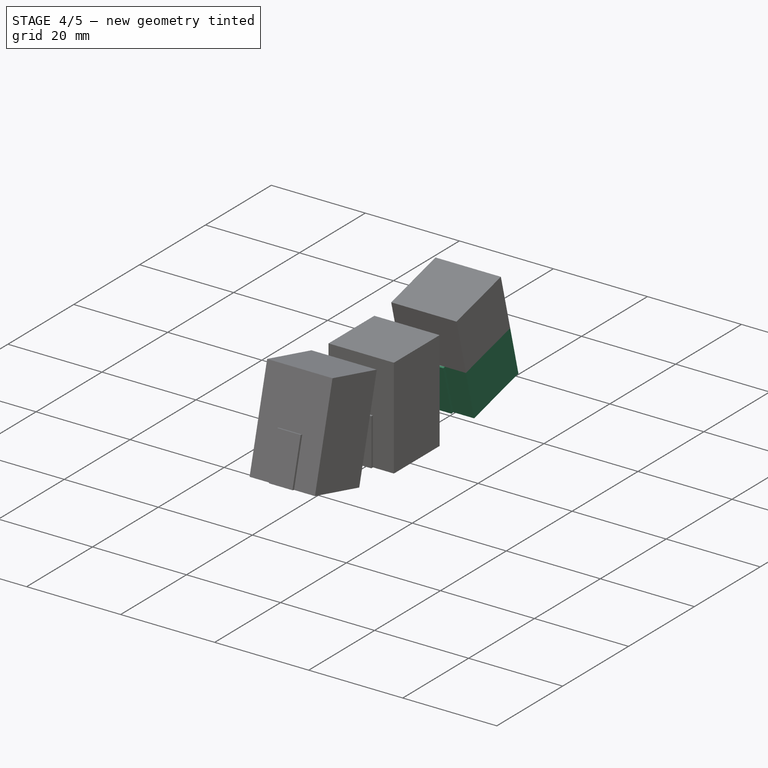
[diagram: stage 4 of 5 — iso view after this stage's code; geometry added in this stage tinted green]
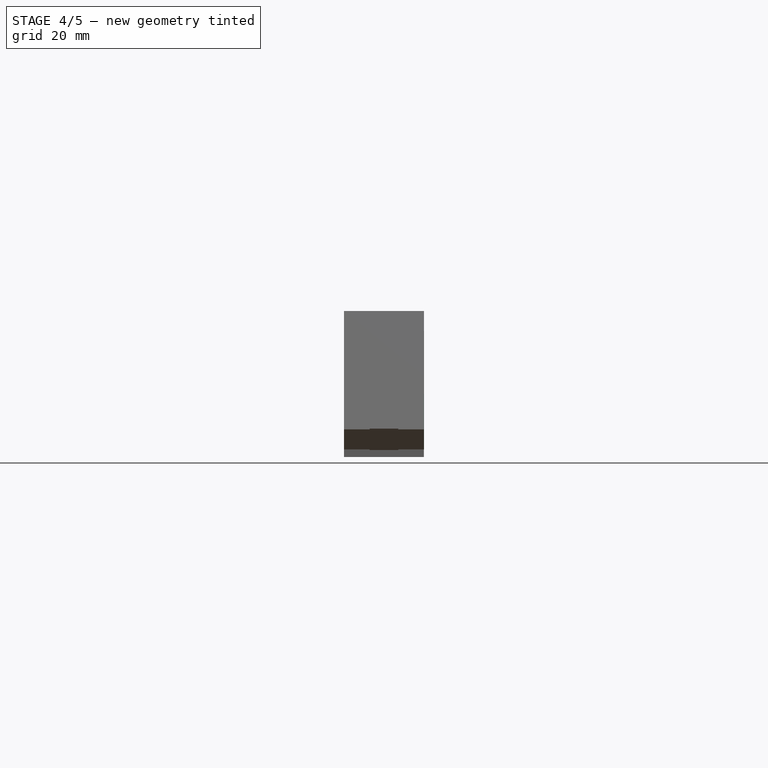
[diagram: stage 4 of 5 — front view after this stage's code; geometry added in this stage tinted green]
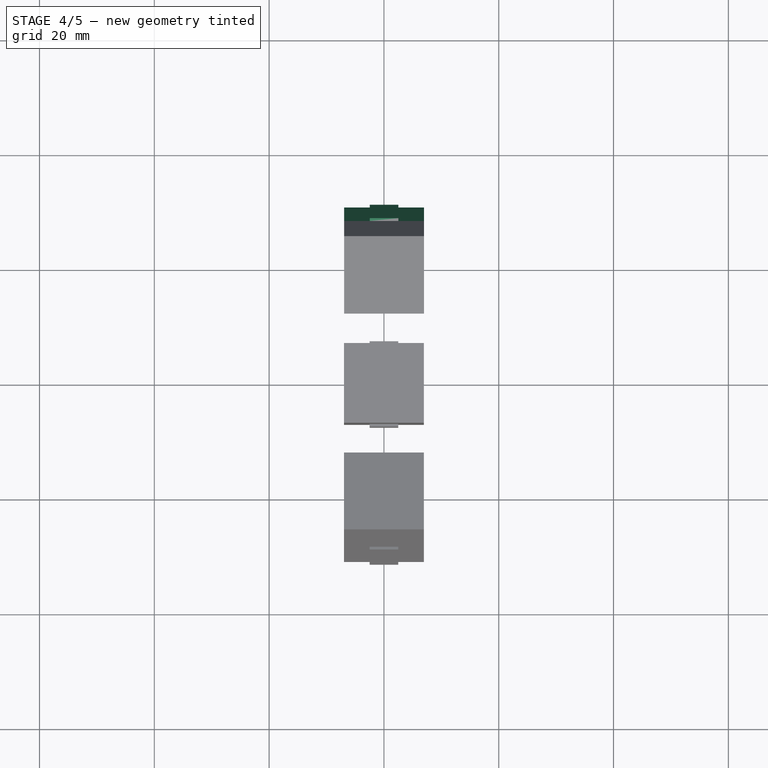
[diagram: stage 4 of 5 — top view after this stage's code; geometry added in this stage tinted green]
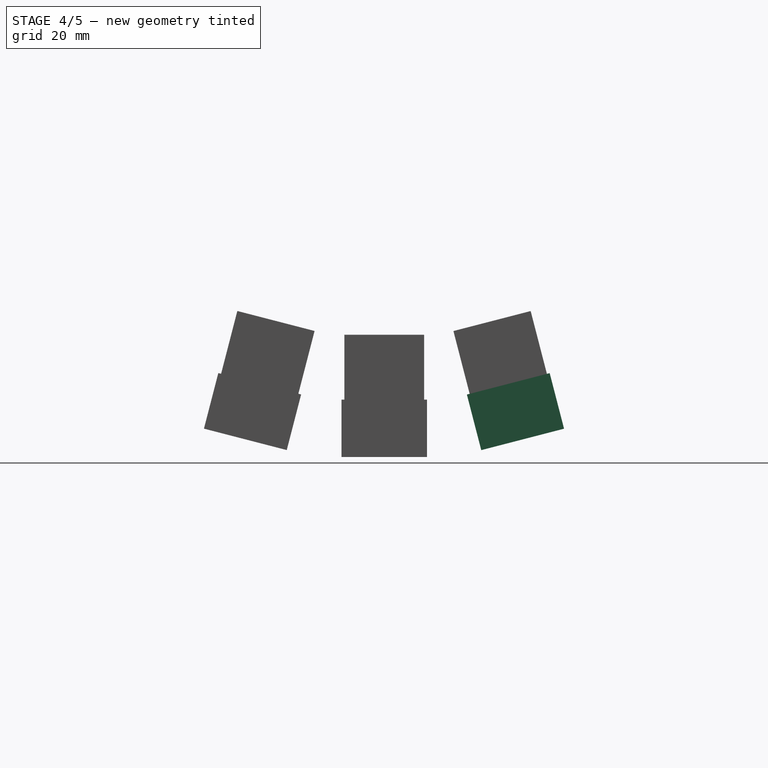
[diagram: stage 4 of 5 — right view after this stage's code; geometry added in this stage tinted green]
FEATURE [Sketcher::SketchObject] Sketch003
  ExternalGeometry = -> [Pad002]
  FullyConstrained = true
  MapMode = 5
  Placement = pos=(0.025,21.6271,3.44814) rot=(-0.704263,0.704263,0.089594;2.96288rad)
  Support = -> [Pad002]
  sketch-geometry (12):
    g0: LineSegment StartX=-6.95 StartY=6.95 StartZ=0 EndX=-6.95 EndY=2.5 EndZ=0
    g1: LineSegment StartX=-6.95 StartY=2.5 StartZ=0 EndX=-7.45 EndY=2.5 EndZ=0
    g2: LineSegment StartX=-7.45 StartY=2.5 StartZ=0 EndX=-7.45 EndY=-2.5 EndZ=0
    g3: LineSegment StartX=-7.45 StartY=-2.5 StartZ=0 EndX=-6.95 EndY=-2.5 EndZ=0
    g4: LineSegment StartX=-6.95 StartY=-2.5 StartZ=0 EndX=-6.95 EndY=-6.95 EndZ=0
    g5: LineSegment StartX=-6.95 StartY=-6.95 StartZ=0 EndX=6.95 EndY=-6.95 EndZ=0
    g6: LineSegment StartX=6.95 StartY=-6.95 StartZ=0 EndX=6.95 EndY=-2.5 EndZ=0
    g7: LineSegment StartX=6.95 StartY=-2.5 StartZ=0 EndX=7.45 EndY=-2.5 EndZ=0
    g8: LineSegment StartX=7.45 StartY=-2.5 StartZ=0 EndX=7.45 EndY=2.5 EndZ=0
    g9: LineSegment StartX=7.45 StartY=2.5 StartZ=0 EndX=6.95 EndY=2.5 EndZ=0
    g10: LineSegment StartX=6.95 StartY=2.5 StartZ=0 EndX=6.95 EndY=6.95 EndZ=0
    g11: LineSegment StartX=6.95 StartY=6.95 StartZ=0 EndX=-6.95 EndY=6.95 EndZ=0
  constraints (33):
    c: Coincident(g0,g-3)
    c: Vertical(g0)
    c: Coincident(g0,g1)
    c: Horizontal(g1)
    c: Coincident(g1,g2)
    c: Vertical(g2)
    c: Coincident(g2,g3)
    c: Coincident(g3,g4)
    c: Vertical(g4)
    c: Coincident(g4,g5)
    c: Coincident(g5,g-4)
    c: Horizontal(g5)
    c: Coincident(g5,g6)
    c: Vertical(g6)
    c: Coincident(g6,g7)
    c: Coincident(g7,g8)
    c: Vertical(g8)
    c: Coincident(g8,g9)
    c: Coincident(g9,g10)
    c: Vertical(g10)
    c: Coincident(g10,g11)
    c: Coincident(g11,g0)
    c: Horizontal(g11)
    c: Horizontal(g3)
    c: Horizontal(g7)
    c: Horizontal(g9)
    c: Vertical(g9,g6)
    c: DistanceX(g3,g3) = 0.5
    c: Equal(g3,g7)
    c: DistanceY(g8,g8) = 5
    c: Symmetric(g2,g8,g-1)
    c: Equal(g8,g2)
    c: Horizontal(g3,g6)
FEATURE [PartDesign::Pad] Pad003
  BaseFeature = -> Pad002
  Direction = (4e-16,0.25038,-0.968148)
  Length = 2.7
  Length2 = 10
  Placement = pos=(0.025,21.3016,4.70673) rot=(0.125206,0.125206,-0.984199;1.58672rad)
  Profile = -> Sketch003
  ReferenceAxis = -> Sketch003 [N_Axis]
  Type = 0
FEATURE [PartDesign::Pad] Pad004
  BaseFeature = -> Pad003
  Direction = (4e-16,0.25038,-0.968148)
  Length = 10
  Length2 = 10
  Placement = pos=(0.025,21.3016,4.70673) rot=(0.125206,0.125206,-0.984199;1.58672rad)
  Profile = -> Sketch003
  ReferenceAxis = -> Sketch003 [N_Axis]
  Type = 0
FEATURE [PartDesign::Body] Body001  label="SubtractorTop"
  Group = -> [Sketch001,Pad001,Sketch002,Pad002,Sketch003,Pad003,Pad004]
  Origin = -> Origin001
  Tip = -> Pad004
FEATURE [Sketcher::SketchObject] Sketch005
  FullyConstrained = true
  MapMode = 5
  Placement = pos=(0,0.025,2) rot=(0,0,-1;1.5708rad)
  Support = -> [Local_CS002]
  sketch-geometry (4):
    g0: LineSegment StartX=-6.95 StartY=6.95 StartZ=0 EndX=6.95 EndY=6.95 EndZ=0
    g1: LineSegment StartX=6.95 StartY=6.95 StartZ=0 EndX=6.95 EndY=-6.95 EndZ=0
    g2: LineSegment StartX=6.95 StartY=-6.95 StartZ=0 EndX=-6.95 EndY=-6.95 EndZ=0
    g3: LineSegment StartX=-6.95 StartY=-6.95 StartZ=0 EndX=-6.95 EndY=6.95 EndZ=0
  constraints (11):
    c: Coincident(g0,g1)
    c: Coincident(g1,g2)
    c: Coincident(g2,g3)
    c: Coincident(g3,g0)
    c: Horizontal(g0)
    c: Horizontal(g2)
    c: Vertical(g1)
    c: Vertical(g3)
    c: Symmetric(g0,g1,g-1)
    c: Equal(g0,g3)
    c: DistanceX(g0,g0) = 13.9
FEATURE [PartDesign::Pad] Pad006
  Direction = (-4e-16,6e-16,1)
  Length = 10
  Length2 = 10
  Placement = pos=(0,0.025,2) rot=(0,0,-1;1.5708rad)
  Profile = -> Sketch005
  ReferenceAxis = -> Sketch005 [N_Axis]
  Type = 0
FEATURE [Sketcher::SketchObject] Sketch006
  ExternalGeometry = -> [Pad006]
  FullyConstrained = true
  MapMode = 5
  Placement = pos=(0,0.025,2) rot=(-0.707107,0.707107,0;3.14159rad)
  Support = -> [Pad006]
  sketch-geometry (4):
    g0: LineSegment StartX=-6.95 StartY=6.95 StartZ=0 EndX=6.95 EndY=6.95 EndZ=0
    g1: LineSegment StartX=6.95 StartY=6.95 StartZ=0 EndX=6.95 EndY=-6.95 EndZ=0
    g2: LineSegment StartX=6.95 StartY=-6.95 StartZ=0 EndX=-6.95 EndY=-6.95 EndZ=0
    g3: LineSegment StartX=-6.95 StartY=-6.95 StartZ=0 EndX=-6.95 EndY=6.95 EndZ=0
  constraints (10):
    c: Coincident(g0,g1)
    c: Coincident(g1,g2)
    c: Coincident(g2,g3)
    c: Coincident(g3,g0)
    c: Horizontal(g0)
    c: Horizontal(g2)
    c: Vertical(g1)
    c: Vertical(g3)
    c: Coincident(g0,g-3)
    c: Coincident(g1,g-4)
FEATURE [PartDesign::Pad] Pad007
  BaseFeature = -> Pad006
  Direction = (4e-16,-6e-16,-1)
  Length = 1.3
  Length2 = 10
  Placement = pos=(0,0.025,2) rot=(0,0,-1;1.5708rad)
  Profile = -> Sketch006
  ReferenceAxis = -> Sketch006 [N_Axis]
  Type = 0
FEATURE [Sketcher::SketchObject] Sketch007
  ExternalGeometry = -> [Pad007]
  FullyConstrained = true
  MapMode = 5
  Placement = pos=(5e-16,0.025,0.7) rot=(-0.707107,0.707107,0;3.14159rad)
  Support = -> [Pad007]
  sketch-geometry (12):
    g0: LineSegment StartX=-6.95 StartY=6.95 StartZ=0 EndX=-6.95 EndY=2.5 EndZ=0
    g1: LineSegment StartX=-6.95 StartY=2.5 StartZ=0 EndX=-7.45 EndY=2.5 EndZ=0
    g2: LineSegment StartX=-7.45 StartY=2.5 StartZ=0 EndX=-7.45 EndY=-2.5 EndZ=0
    g3: LineSegment StartX=-7.45 StartY=-2.5 StartZ=0 EndX=-6.95 EndY=-2.5 EndZ=0
    g4: LineSegment StartX=-6.95 StartY=-2.5 StartZ=0 EndX=-6.95 EndY=-6.95 EndZ=0
    g5: LineSegment StartX=-6.95 StartY=-6.95 StartZ=0 EndX=6.95 EndY=-6.95 EndZ=0
    g6: LineSegment StartX=6.95 StartY=-6.95 StartZ=0 EndX=6.95 EndY=-2.5 EndZ=0
    g7: LineSegment StartX=6.95 StartY=-2.5 StartZ=0 EndX=7.45 EndY=-2.5 EndZ=0
    g8: LineSegment StartX=7.45 StartY=-2.5 StartZ=0 EndX=7.45 EndY=2.5 EndZ=0
    g9: LineSegment StartX=7.45 StartY=2.5 StartZ=0 EndX=6.95 EndY=2.5 EndZ=0
    g10: LineSegment StartX=6.95 StartY=2.5 StartZ=0 EndX=6.95 EndY=6.95 EndZ=0
    g11: LineSegment StartX=6.95 StartY=6.95 StartZ=0 EndX=-6.95 EndY=6.95 EndZ=0
  constraints (33):
    c: Coincident(g0,g-3)
    c: Vertical(g0)
    c: Coincident(g0,g1)
    c: Horizontal(g1)
    c: Coincident(g1,g2)
    c: Vertical(g2)
    c: Coincident(g2,g3)
    c: Coincident(g3,g4)
    c: Vertical(g4)
    c: Coincident(g4,g5)
    c: Coincident(g5,g-4)
    c: Horizontal(g5)
    c: Coincident(g5,g6)
    c: Vertical(g6)
    c: Coincident(g6,g7)
    c: Coincident(g7,g8)
    c: Vertical(g8)
    c: Coincident(g8,g9)
    c: Coincident(g9,g10)
    c: Vertical(g10)
    c: Coincident(g10,g11)
    c: Coincident(g11,g0)
    c: Horizontal(g11)
    c: Horizontal(g3)
    c: Horizontal(g7)
    c: Horizontal(g9)
    c: Vertical(g9,g6)
    c: DistanceX(g3,g3) = 0.5
    c: Equal(g3,g7)
    c: DistanceY(g8,g8) = 5
    c: Symmetric(g2,g8,g-1)
    c: Equal(g8,g2)
    c: Horizontal(g3,g6)
FEATURE [PartDesign::Pad] Pad008
  BaseFeature = -> Pad007
  Direction = (4e-16,-6e-16,-1)
  Length = 2.7
  Length2 = 10
  Placement = pos=(0,0.025,2) rot=(0,0,-1;1.5708rad)
  Profile = -> Sketch007
  ReferenceAxis = -> Sketch007 [N_Axis]
  Type = 0
FEATURE [PartDesign::Pad] Pad009
  BaseFeature = -> Pad008
  Direction = (4e-16,-6e-16,-1)
  Length = 10
  Length2 = 10
  Placement = pos=(0,0.025,2) rot=(0,0,-1;1.5708rad)
  Profile = -> Sketch007
  ReferenceAxis = -> Sketch007 [N_Axis]
  Type = 0
FEATURE [PartDesign::Body] Body002  label="SubtractorMiddle"
  Group = -> [Sketch005,Pad006,Sketch006,Pad007,Sketch007,Pad008,Pad009]
  Origin = -> Origin002
  Tip = -> Pad009
FEATURE [Sketcher::SketchObject] Sketch009
  FullyConstrained = true
  MapMode = 5
  Placement = pos=(-5.3e-15,-21.35,4.71925) rot=(-0.125206,-0.125206,-0.984199;1.58672rad)
  Support = -> [Local_CS001]
  sketch-geometry (4):
    g0: LineSegment StartX=-6.95 StartY=6.95 StartZ=0 EndX=6.95 EndY=6.95 EndZ=0
    g1: LineSegment StartX=6.95 StartY=6.95 StartZ=0 EndX=6.95 EndY=-6.95 EndZ=0
    g2: LineSegment StartX=6.95 StartY=-6.95 StartZ=0 EndX=-6.95 EndY=-6.95 EndZ=0
    g3: LineSegment StartX=-6.95 StartY=-6.95 StartZ=0 EndX=-6.95 EndY=6.95 EndZ=0
  constraints (11):
    c: Coincident(g0,g1)
    c: Coincident(g1,g2)
    c: Coincident(g2,g3)
    c: Coincident(g3,g0)
    c: Horizontal(g0)
    c: Horizontal(g2)
    c: Vertical(g1)
    c: Vertical(g3)
    c: Symmetric(g0,g1,g-1)
    c: Equal(g0,g3)
    c: DistanceX(g0,g0) = 13.9
FEATURE [PartDesign::Pad] Pad011
  Direction = (-2e-16,0.25038,0.968148)
  Length = 10
  Length2 = 10
  Placement = pos=(-5.3e-15,-21.35,4.71925) rot=(-0.125206,-0.125206,-0.984199;1.58672rad)
  Profile = -> Sketch009
  ReferenceAxis = -> Sketch009 [N_Axis]
  Type = 0
FEATURE [Sketcher::SketchObject] Sketch010
  ExternalGeometry = -> [Pad011]
  FullyConstrained = true
  MapMode = 5
  Placement = pos=(-5.3e-15,-21.35,4.71925) rot=(-0.704263,0.704263,-0.089594;3.3203rad)
  Support = -> [Pad011]
  sketch-geometry (4):
    g0: LineSegment StartX=-6.95 StartY=6.95 StartZ=0 EndX=6.95 EndY=6.95 EndZ=0
    g1: LineSegment StartX=6.95 StartY=6.95 StartZ=0 EndX=6.95 EndY=-6.95 EndZ=0
    g2: LineSegment StartX=6.95 StartY=-6.95 StartZ=0 EndX=-6.95 EndY=-6.95 EndZ=0
    g3: LineSegment StartX=-6.95 StartY=-6.95 StartZ=0 EndX=-6.95 EndY=6.95 EndZ=0
  constraints (10):
    c: Coincident(g0,g1)
    c: Coincident(g1,g2)
    c: Coincident(g2,g3)
    c: Coincident(g3,g0)
    c: Horizontal(g0)
    c: Horizontal(g2)
    c: Vertical(g1)
    c: Vertical(g3)
    c: Coincident(g0,g-3)
    c: Coincident(g1,g-4)
FEATURE [PartDesign::Pad] Pad012
  BaseFeature = -> Pad011
  Direction = (2e-16,-0.25038,-0.968148)
  Length = 1.3
  Length2 = 10
  Placement = pos=(-5.3e-15,-21.35,4.71925) rot=(-0.125206,-0.125206,-0.984199;1.58672rad)
  Profile = -> Sketch010
  ReferenceAxis = -> Sketch010 [N_Axis]
  Type = 0
FEATURE [Sketcher::SketchObject] Sketch011
  ExternalGeometry = -> [Pad012]
  FullyConstrained = true
  MapMode = 5
  Placement = pos=(-5e-15,-21.6755,3.46065) rot=(-0.704263,0.704263,-0.089594;3.3203rad)
  Support = -> [Pad012]
  sketch-geometry (12):
    g0: LineSegment StartX=-6.95 StartY=6.95 StartZ=0 EndX=-6.95 EndY=2.5 EndZ=0
    g1: LineSegment StartX=-6.95 StartY=2.5 StartZ=0 EndX=-7.45 EndY=2.5 EndZ=0
    g2: LineSegment StartX=-7.45 StartY=2.5 StartZ=0 EndX=-7.45 EndY=-2.5 EndZ=0
    g3: LineSegment StartX=-7.45 StartY=-2.5 StartZ=0 EndX=-6.95 EndY=-2.5 EndZ=0
    g4: LineSegment StartX=-6.95 StartY=-2.5 StartZ=0 EndX=-6.95 EndY=-6.95 EndZ=0
    g5: LineSegment StartX=-6.95 StartY=-6.95 StartZ=0 EndX=6.95 EndY=-6.95 EndZ=0
    g6: LineSegment StartX=6.95 StartY=-6.95 StartZ=0 EndX=6.95 EndY=-2.5 EndZ=0
    g7: LineSegment StartX=6.95 StartY=-2.5 StartZ=0 EndX=7.45 EndY=-2.5 EndZ=0
    g8: LineSegment StartX=7.45 StartY=-2.5 StartZ=0 EndX=7.45 EndY=2.5 EndZ=0
    g9: LineSegment StartX=7.45 StartY=2.5 StartZ=0 EndX=6.95 EndY=2.5 EndZ=0
    g10: LineSegment StartX=6.95 StartY=2.5 StartZ=0 EndX=6.95 EndY=6.95 EndZ=0
    g11: LineSegment StartX=6.95 StartY=6.95 StartZ=0 EndX=-6.95 EndY=6.95 EndZ=0
  constraints (33):
    c: Coincident(g0,g-3)
    c: Vertical(g0)
    c: Coincident(g0,g1)
    c: Horizontal(g1)
    c: Coincident(g1,g2)
    c: Vertical(g2)
    c: Coincident(g2,g3)
    c: Coincident(g3,g4)
    c: Vertical(g4)
    c: Coincident(g4,g5)
    c: Coincident(g5,g-4)
    c: Horizontal(g5)
    c: Coincident(g5,g6)
    c: Vertical(g6)
    c: Coincident(g6,g7)
    c: Coincident(g7,g8)
    c: Vertical(g8)
    c: Coincident(g8,g9)
    c: Coincident(g9,g10)
    c: Vertical(g10)
    c: Coincident(g10,g11)
    c: Coincident(g11,g0)
    c: Horizontal(g11)
    c: Horizontal(g3)
    c: Horizontal(g7)
    c: Horizontal(g9)
    c: Vertical(g9,g6)
    c: DistanceX(g3,g3) = 0.5
    c: Equal(g3,g7)
    c: DistanceY(g8,g8) = 5
    c: Symmetric(g2,g8,g-1)
    c: Equal(g8,g2)
    c: Horizontal(g3,g6)
FEATURE [PartDesign::Pad] Pad013
  BaseFeature = -> Pad012
  Direction = (2e-16,-0.25038,-0.968148)
  Length = 2.7
  Length2 = 10
  Placement = pos=(-5.3e-15,-21.35,4.71925) rot=(-0.125206,-0.125206,-0.984199;1.58672rad)
  Profile = -> Sketch011
  ReferenceAxis = -> Sketch011 [N_Axis]
  Type = 0
FEATURE [PartDesign::Pad] Pad014
  BaseFeature = -> Pad013
  Direction = (2e-16,-0.25038,-0.968148)
  Length = 10
  Length2 = 10
  Placement = pos=(-5.3e-15,-21.35,4.71925) rot=(-0.125206,-0.125206,-0.984199;1.58672rad)
  Profile = -> Sketch011
  ReferenceAxis = -> Sketch011 [N_Axis]
  Type = 0
FEATURE [PartDesign::Body] Body003  label="SubtractorBottom"
  Group = -> [Sketch009,Pad011,Sketch010,Pad012,Sketch011,Pad013,Pad014]
  Origin = -> Origin003
  Tip = -> Pad014
FEATURE [Part::Compound] Compound  label="CompoundSubtractors"
  Links = -> [Body001,Body002,Body003]
FEATURE [Part::Refine] Cut003  label="KeyColumnStraightNice"
  Source = -> Cut002

RESOLVED EXTERNAL PARTS (link-assembly join: the EXTERNAL_REF files above that resolve inside this repo's crawl, each included once):
---- part ../components/MX_Switches.FCStd = doc fcstd_fbf47cda5fe2 ----
FCSTD DOCUMENT  (FreeCAD 0.21R33668 +26 (Git))
Label: MX_Switches
License: All rights reserved
LicenseURL: http://en.wikipedia.org/wiki/All_rights_reserved
objects: Sketcher::SketchObject×45, PartDesign::Pad×15, PartDesign::AdditiveLoft×15, PartDesign::Plane×10, PartDesign::Body×5, Part::Refine×2
note: 122 computed .brp shape members not serialized (recipe doc carries the construction recipe); baked Part::Feature solids carry a one-line shape summary decoded from their .brp

FEATURE [Sketcher::SketchObject] Sketch014
  FullyConstrained = true
  MapMode = 5
  Support = -> [XY_Plane003]
  sketch-geometry (4):
    g0: LineSegment StartX=-7.8 StartY=7.8 StartZ=0 EndX=7.8 EndY=7.8 EndZ=0
    g1: LineSegment StartX=7.8 StartY=7.8 StartZ=0 EndX=7.8 EndY=-7.8 EndZ=0
    g2: LineSegment StartX=7.8 StartY=-7.8 StartZ=0 EndX=-7.8 EndY=-7.8 EndZ=0
    g3: LineSegment StartX=-7.8 StartY=-7.8 StartZ=0 EndX=-7.8 EndY=7.8 EndZ=0
  constraints (11):
    c: Coincident(g0,g1)
    c: Coincident(g1,g2)
    c: Coincident(g2,g3)
    c: Coincident(g3,g0)
    c: Horizontal(g0)
    c: Horizontal(g2)
    c: Vertical(g1)
    c: Vertical(g3)
    c: DistanceX(g0,g0) = 15.6
    c: Equal(g0,g3)
    c: Symmetric(g0,g1,g-1)
FEATURE [PartDesign::Pad] Pad003
  Direction = (0,0,1)
  Length = 1
  Length2 = 100
  Profile = -> Sketch014
  Refine = true
  Type = 0
FEATURE [Sketcher::SketchObject] Sketch015
  FullyConstrained = true
  MapMode = 5
  Support = -> [XY_Plane003]
  sketch-geometry (4):
    g0: LineSegment StartX=-7 StartY=7 StartZ=0 EndX=7 EndY=7 EndZ=0
    g1: LineSegment StartX=7 StartY=7 StartZ=0 EndX=7 EndY=-7 EndZ=0
    g2: LineSegment StartX=7 StartY=-7 StartZ=0 EndX=-7 EndY=-7 EndZ=0
    g3: LineSegment StartX=-7 StartY=-7 StartZ=0 EndX=-7 EndY=7 EndZ=0
  constraints (11):
    c: Coincident(g0,g1)
    c: Coincident(g1,g2)
    c: Coincident(g2,g3)
    c: Coincident(g3,g0)
    c: Horizontal(g0)
    c: Horizontal(g2)
    c: Vertical(g1)
    c: Vertical(g3)
    c: Symmetric(g0,g1,g-1)
    c: Equal(g0,g3)
    c: DistanceX(g0,g0) = 14
FEATURE [PartDesign::Pad] Pad004
  BaseFeature = -> Pad003
  Direction = (0,0,1)
  Length = 2.5
  Length2 = 100
  Profile = -> Sketch015
  Refine = true
  Reversed = true
  Type = 0
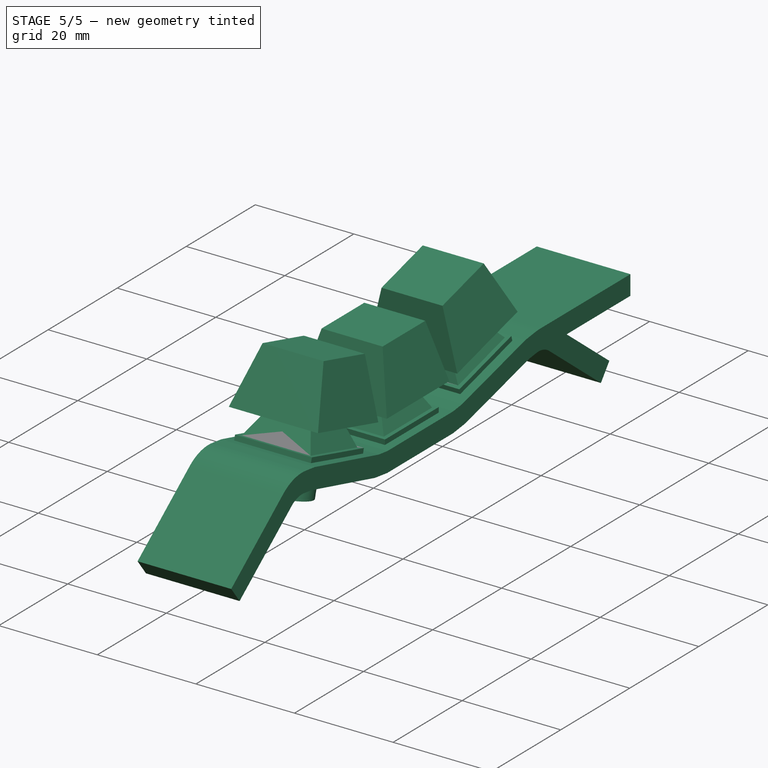
[diagram: stage 5 of 5 — iso view after this stage's code; geometry added in this stage tinted green]
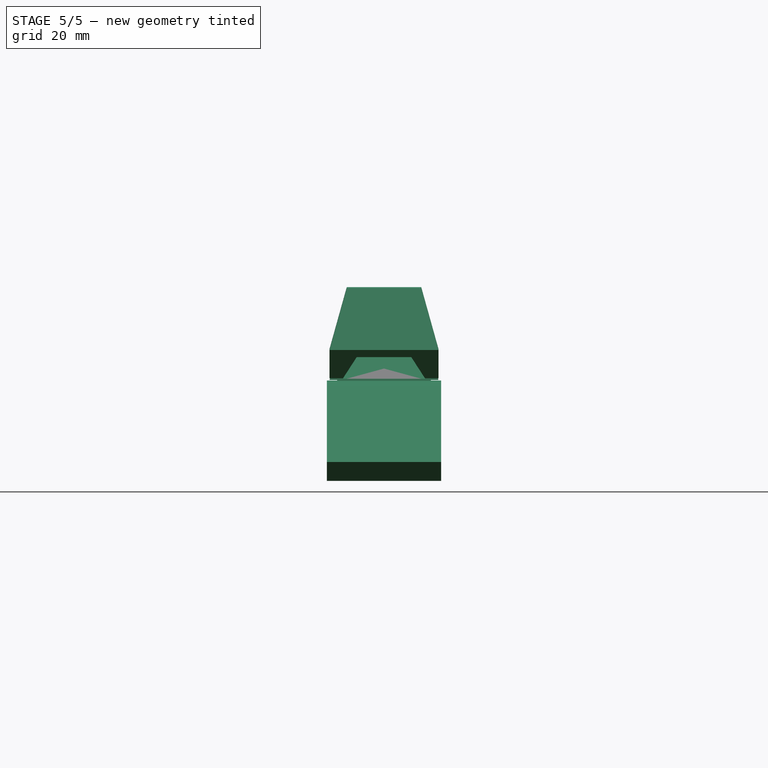
[diagram: stage 5 of 5 — front view after this stage's code; geometry added in this stage tinted green]
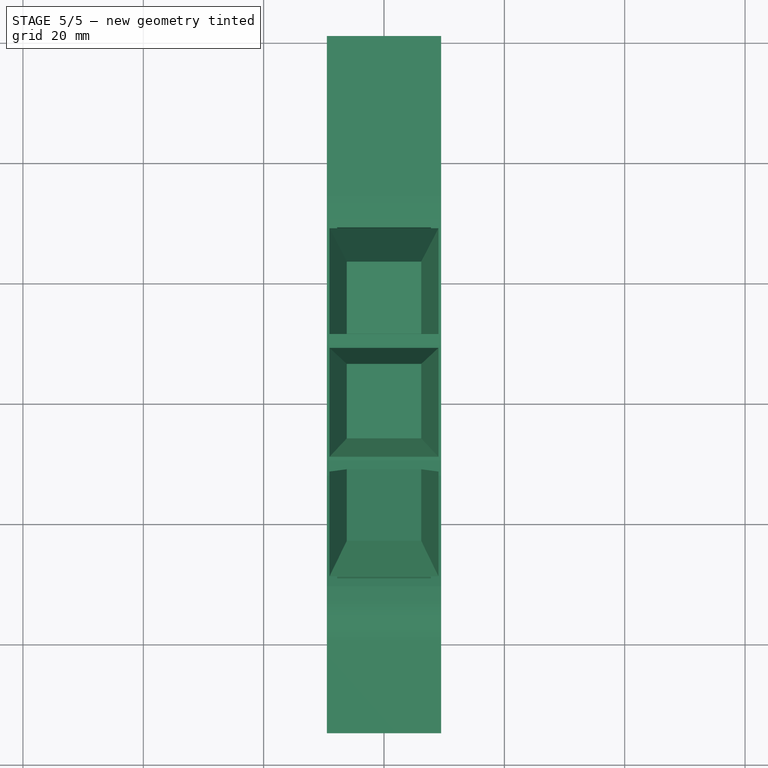
[diagram: stage 5 of 5 — top view after this stage's code; geometry added in this stage tinted green]
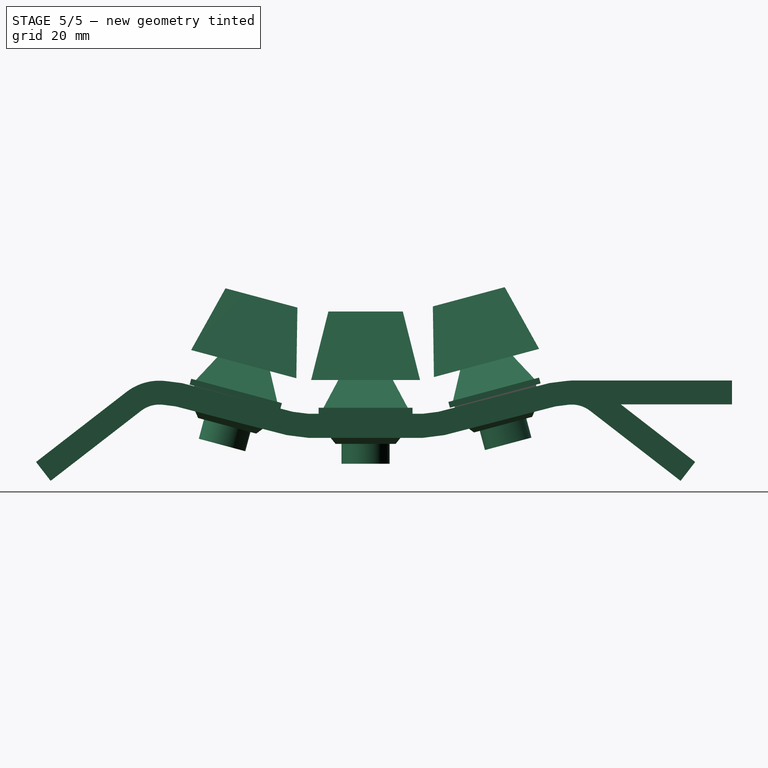
[diagram: stage 5 of 5 — right view after this stage's code; geometry added in this stage tinted green]
FEATURE [Part::Refine] Compound001  label="RefinedSubtractorCompound"
  Source = -> Compound
FEATURE [Part::Refine] Body005  label="ColumnAsPart"
  Source = -> Body
FEATURE [Part::Cut] Cut  label="ColumnOkay"
  Base = -> Body005
  Tool = -> Compound001
FEATURE [Part::Refine] Cut001  label="KeyColumnNice"
  Source = -> Cut
FEATURE [App::Link] Link001  label="MXSwitch100Nice"
  LinkPlacement = pos=(0,-21.7059,4.82963) rot=(-1,0,0;0.261799rad)
  LinkedObject = -> <external ../components/MX_Switches.FCStd>#Body008
  Placement = pos=(0,-21.7059,4.82963) rot=(-1,0,0;0.261799rad)
FEATURE [App::Link] Link002  label="MXSwitch100Nice001"
  LinkPlacement = pos=(0,-2.38419e-07,2) rot=(0,0,1;0rad)
  LinkedObject = -> Link001
  Placement = pos=(0,-2.38419e-07,2) rot=(0,0,1;0rad)
FEATURE [App::Link] Link003  label="MXSwitch100Nice002"
  LinkPlacement = pos=(0,21.5493,5.0191) rot=(1,0,0;0.261799rad)
  LinkedObject = -> Link002
  Placement = pos=(0,21.5493,5.0191) rot=(1,0,0;0.261799rad)
FEATURE [Part::Compound] Compound002  label="ColumnWithKeys"
  Links = -> [Cut001,Link001,Link002,Link003]
FEATURE [Part::Refine] Compound003  label="ColumnNiceWithKeys"
  Source = -> Compound002
FEATURE [Sketcher::SketchObject] Sketch012
  FullyConstrained = true
  MapMode = 5
  Placement = pos=(0,0,0) rot=(0.57735,0.57735,0.57735;2.0944rad)
  Support = -> [YZ_Plane005]
  expr: Constraints[12] = 180 - 7.25
  expr: Constraints[13] = 180 - 7.25
  expr: Constraints[16] = 180 - 7.25
  expr: Constraints[19] = 180 - 7.25
  expr: Constraints[6] = 19.05 mm / 2
  expr: Constraints[74] = 172.75
  expr: Constraints[7] = 19.05 mm / 2
  expr: Constraints[9] = 180 - 7.25
  sketch-geometry (32):
    g0: LineSegment StartX=-9.525 StartY=2 StartZ=0 EndX=9.525 EndY=2 EndZ=0
    g1: LineSegment StartX=9.525 StartY=2 StartZ=0 EndX=12.1042 EndY=2.32812 EndZ=0
    g2: LineSegment StartX=12.1042 StartY=2.32812 StartZ=0 EndX=30.5474 EndY=7.09786 EndZ=0
    g3: LineSegment StartX=30.5474 StartY=7.09786 StartZ=0 EndX=33.1266 EndY=7.42597 EndZ=0
    g4: LineSegment StartX=-9.525 StartY=2 StartZ=0 EndX=-12.1042 EndY=2.32812 EndZ=0
    g5: LineSegment StartX=-12.1042 StartY=2.32812 StartZ=0 EndX=-30.5474 EndY=7.09786 EndZ=0
    g6: LineSegment StartX=-30.5474 StartY=7.09786 StartZ=0 EndX=-33.1266 EndY=7.42597 EndZ=0
    g7: ArcOfCircle CenterX=-34.2584 CenterY=-1.47035 CenterZ=0 NormalX=0 NormalY=0 NormalZ=1 AngleXU=0 Radius=8.96802 StartAngle=1.44426 EndAngle=2.22966
    g8: LineSegment StartX=-31.5489 StartY=3.22527 StartZ=0 EndX=-13.1057 EndY=-1.54447 EndZ=0
    g9: LineSegment StartX=-9.525 StartY=-2 StartZ=0 EndX=9.525 EndY=-2 EndZ=0
    g10: LineSegment StartX=13.1057 StartY=-1.54447 StartZ=0 EndX=31.5489 EndY=3.22527 EndZ=0
    g11: LineSegment StartX=12.1042 StartY=2.32812 StartZ=0 EndX=13.1057 EndY=-1.54447 EndZ=0
    g12: LineSegment StartX=-13.1057 StartY=-1.54447 StartZ=0 EndX=-12.1042 EndY=2.32812 EndZ=0
    g13: LineSegment StartX=-13.1057 StartY=-1.54447 StartZ=0 EndX=-9.525 EndY=-2 EndZ=0
    g14: LineSegment StartX=9.525 StartY=-2 StartZ=0 EndX=13.1057 EndY=-1.54447 EndZ=0
    g15: LineSegment StartX=9.525 StartY=2 StartZ=0 EndX=9.525 EndY=-2 EndZ=0
    g16: LineSegment StartX=-33.1266 StartY=7.42597 StartZ=0 EndX=-33.6274 EndY=3.48968 EndZ=0
    g17: LineSegment StartX=-31.5489 StartY=3.22527 StartZ=0 EndX=-33.6274 EndY=3.48968 EndZ=0
    g18: LineSegment StartX=31.5489 StartY=3.22527 StartZ=0 EndX=33.6274 EndY=3.48968 EndZ=0
    g19: ArcOfCircle CenterX=-34.2584 CenterY=-1.47035 CenterZ=0 NormalX=0 NormalY=0 NormalZ=1 AngleXU=0 Radius=5 StartAngle=1.44426 EndAngle=2.22966
    g20: LineSegment StartX=-39.7488 StartY=5.62057 StartZ=0 EndX=-37.3195 EndY=2.4831 EndZ=0
    g21: LineSegment StartX=-33.6274 StartY=3.48968 StartZ=0 EndX=-34.2584 EndY=-1.47035 EndZ=0
    g22: LineSegment StartX=-37.3195 StartY=2.4831 StartZ=0 EndX=-34.2584 EndY=-1.47035 EndZ=0
    g23: LineSegment StartX=-39.7488 StartY=5.62057 StartZ=0 EndX=-54.7719 EndY=-6.01155 EndZ=0
    g24: LineSegment StartX=-54.7719 StartY=-6.01155 StartZ=0 EndX=-52.3426 EndY=-9.14903 EndZ=0
    g25: LineSegment StartX=-52.3426 StartY=-9.14903 StartZ=0 EndX=-37.3195 EndY=2.4831 EndZ=0
    g26: LineSegment StartX=34.8894 StartY=3.56963 StartZ=0 EndX=60.8894 EndY=3.56963 EndZ=0
    g27: LineSegment StartX=60.8894 StartY=3.56963 StartZ=0 EndX=60.8894 EndY=7.53765 EndZ=0
    g28: LineSegment StartX=60.8894 StartY=7.53765 StartZ=0 EndX=34.8894 EndY=7.53765 EndZ=0
    g29: ArcOfCircle CenterX=34.8894 CenterY=-6.43037 CenterZ=0 NormalX=0 NormalY=0 NormalZ=1 AngleXU=0 Radius=13.968 StartAngle=1.5708 EndAngle=1.69733
    g30: ArcOfCircle CenterX=34.8894 CenterY=-6.43037 CenterZ=0 NormalX=0 NormalY=0 NormalZ=1 AngleXU=0 Radius=10 StartAngle=1.5708 EndAngle=1.69733
    g31: LineSegment StartX=34.8894 StartY=3.56963 StartZ=0 EndX=34.8894 EndY=-6.43037 EndZ=0
  constraints (85):
    c: Horizontal(g0)
    c: Coincident(g1,g0)
    c: Coincident(g3,g2)
    c: Coincident(g4,g0)
    c: Coincident(g5,g4)
    c: DistanceY(g-1,g0) = 2
    c: DistanceX(g-1,g0) = 9.525
    c: DistanceX(g0,g-1) = 9.525
    c: Distance(g1) = 2.6
    c: Angle(g1,g0) = 3.01506
    c: Coincident(g2,g1)
    c: Distance(g2) = 19.05
    c: Angle(g2,g1) = 3.01506
    c: Angle(g0,g4) = 3.01506
    c: Distance(g4) = 2.6
    c: Distance(g5) = 19.05
    c: Angle(g4,g5) = 3.01506
    c: Coincident(g6,g5)
    c: Distance(g6) = 2.6
    c: Angle(g6,g5) = 3.01506
    c: Coincident(g7,g6)
    c: Horizontal(g9)
    c: Parallel(g2,g10)
    c: Parallel(g8,g5)
    c: Equal(g5,g8)
    c: Equal(g0,g9)
    c: Equal(g2,g10)
    c: Distance(g0,g9) = 4
    c: Coincident(g11,g1)
    c: Coincident(g11,g10)
    c: Perpendicular(g10,g11)
    c: Distance(g11) = 4
    c: Coincident(g12,g8)
    c: Coincident(g12,g4)
    c: Perpendicular(g8,g12)
    c: Distance(g12) = 4
    c: Coincident(g13,g8)
    c: Coincident(g13,g9)
    c: Coincident(g14,g9)
    c: Coincident(g14,g10)
    c: Coincident(g15,g0)
    c: Coincident(g15,g9)
    c: Perpendicular(g9,g15)
    c: Coincident(g16,g6)
    c: Coincident(g17,g8)
    c: Coincident(g17,g16)
    c: Perpendicular(g17,g16)
    c: Parallel(g6,g17)
    c: Coincident(g18,g10)
    c: Parallel(g3,g18)
    c: Coincident(g19,g7)
    c: Coincident(g19,g17)
    c: Coincident(g20,g7)
    c: Coincident(g20,g19)
    c: Coincident(g21,g17)
    c: Coincident(g21,g7)
    c: Coincident(g22,g19)
    c: Coincident(g22,g7)
    c: Parallel(g20,g22)
    c: Parallel(g21,g16)
    c: Distance(g22) = 5
    c: Angle(g21,g22) = 0.785398
    c: Tangent(g7,g23) = -1.5708
    c: Coincident(g23,g24)
    c: Coincident(g24,g25)
    c: Coincident(g25,g19)
    c: Perpendicular(g24,g23)
    c: Perpendicular(g25,g24)
    c: Distance(g23) = 19
    c: Angle(g10,g18) = 3.01506
    c: Coincident(g26,g27)
    c: Coincident(g27,g28)
    c: Parallel(g28,g26)
    c: Perpendicular(g26,g27)
    c: Angle(g18,g26) = 3.01506
    c: Tangent(g3,g29) = 1.5708
    c: Tangent(g28,g29) = -1.5708
    c: Tangent(g26,g30) = 1.5708
    c: Tangent(g18,g30) = 1.5708
    c: Distance(g3) = 2.6
    c: Distance(g28) = 26
    c: Coincident(g30,g29)
    c: Coincident(g31,g26)
    c: Coincident(g31,g29)
    c: Distance(g31) = 10
FEATURE [PartDesign::Pad] Pad015
  Direction = (1,-2e-16,3e-16)
  Length = 19
  Length2 = 10
  Midplane = true
  Placement = pos=(0,0,0) rot=(0.57735,0.57735,0.57735;2.0944rad)
  Profile = -> Sketch012
  ReferenceAxis = -> Sketch012 [N_Axis]
  Type = 0
FEATURE [PartDesign::Body] Body006  label="KeyColumnStraightBase"
  Group = -> [Sketch012,Pad015]
  Origin = -> Origin004
  Tip = -> Pad015
FEATURE [Part::Refine] Compound004  label="RefinedSubtractorCompound2"
  Source = -> Compound
FEATURE [Part::Cut] Cut002
  Base = -> Body006
  Tool = -> Compound004
FEATURE [Sketcher::SketchObject] Sketch044
  FullyConstrained = true
  MapMode = 5
  Placement = pos=(0,0,1) rot=(0,0,1;0rad)
  sketch-geometry (4):
    g0: LineSegment StartX=-7 StartY=7 StartZ=0 EndX=7 EndY=7 EndZ=0
    g1: LineSegment StartX=7 StartY=7 StartZ=0 EndX=7 EndY=-7 EndZ=0
    g2: LineSegment StartX=7 StartY=-7 StartZ=0 EndX=-7 EndY=-7 EndZ=0
    g3: LineSegment StartX=-7 StartY=-7 StartZ=0 EndX=-7 EndY=7 EndZ=0
  constraints (11):
    c: Coincident(g0,g1)
    c: Coincident(g1,g2)
    c: Coincident(g2,g3)
    c: Coincident(g3,g0)
    c: Horizontal(g0)
    c: Horizontal(g2)
    c: Vertical(g1)
    c: Vertical(g3)
    c: Symmetric(g0,g1,g-1)
    c: Equal(g0,g3)
    c: DistanceX(g0,g0) = 14
FEATURE [Sketcher::SketchObject] Sketch045
  AttachmentOffset = pos=(0,0,5.6) rot=(0,0,1;0rad)
  FullyConstrained = true
  MapMode = 5
  Placement = pos=(0,0,6.6) rot=(0,0,1;0rad)
  expr: .AttachmentOffset.Base.z = 11.6 - 5 - 1
  sketch-geometry (4):
    g0: LineSegment StartX=-4 StartY=4 StartZ=0 EndX=4 EndY=4 EndZ=0
    g1: LineSegment StartX=4 StartY=4 StartZ=0 EndX=4 EndY=-4 EndZ=0
    g2: LineSegment StartX=4 StartY=-4 StartZ=0 EndX=-4 EndY=-4 EndZ=0
    g3: LineSegment StartX=-4 StartY=-4 StartZ=0 EndX=-4 EndY=4 EndZ=0
  constraints (11):
    c: Coincident(g0,g1)
    c: Coincident(g1,g2)
    c: Coincident(g2,g3)
    c: Coincident(g3,g0)
    c: Horizontal(g0)
    c: Horizontal(g2)
    c: Vertical(g1)
    c: Vertical(g3)
    c: Equal(g0,g3)
    c: Symmetric(g0,g1,g-1)
    c: DistanceX(g0,g0) = 8
FEATURE [PartDesign::AdditiveLoft] AdditiveLoft010
  BaseFeature = -> Pad014
  Closed = false
  Profile = -> Sketch044
  Refine = true
  Ruled = false
  Sections = -> [Sketch045]
FEATURE [Sketcher::SketchObject] Sketch046
  AttachmentOffset = pos=(0,0,16) rot=(0,0,1;0rad)
  FullyConstrained = true
  MapMode = 5
  Placement = pos=(0,0,17) rot=(0,0,1;0rad)
  expr: Constraints[14] = 13.05 mm
  expr: Constraints[15] = 18.05 mm
  expr: Constraints[16] = 5.68 mm * 1.25
  expr: Constraints[17] = 5.68 mm * 1.25
  sketch-geometry (7):
    g0: LineSegment StartX=-14.95 StartY=7.1 StartZ=0 EndX=7.1 EndY=7.1 EndZ=0
    g1: LineSegment StartX=7.1 StartY=7.1 StartZ=0 EndX=7.1 EndY=-24 EndZ=0
    g2: LineSegment StartX=7.1 StartY=-24 StartZ=0 EndX=-9.95 EndY=-24 EndZ=0
    g3: LineSegment StartX=-14.95 StartY=7.1 StartZ=0 EndX=-14.95 EndY=-5.95 EndZ=0
    g4: LineSegment StartX=-14.95 StartY=-5.95 StartZ=0 EndX=-9.95 EndY=-5.95 EndZ=0
    g5: LineSegment StartX=-9.95 StartY=-24 StartZ=0 EndX=-9.95 EndY=-5.95 EndZ=0
    g6: GeomPoint X=0 Y=-1e-16 Z=0
  constraints (19):
    c: Coincident(g0,g1)
    c: Coincident(g1,g2)
    c: Horizontal(g0)
    c: Horizontal(g2)
    c: Vertical(g1)
    c: Coincident(g3,g0)
    c: Coincident(g4,g3)
    c: Coincident(g5,g2)
    c: Coincident(g5,g4)
    c: Horizontal(g4)
    c: Vertical(g3)
    c: Vertical(g5)
    c: DistanceX(g0,g0) = 22.05
    c: DistanceX(g2,g2) = 17.05
    c: DistanceY(g3,g3) = 13.05
    c: DistanceY(g5,g5) = 18.05
    c: DistanceY(g6,g0) = 7.1
    c: DistanceX(g6,g0) = 7.1
    c: Coincident(g-1,g6)
FEATURE [Sketcher::SketchObject] Sketch047
  AttachmentOffset = pos=(0,0,4.61) rot=(0,0,1;0rad)
  FullyConstrained = true
  MapMode = 5
  Placement = pos=(0,0,5.61) rot=(0,0,1;0rad)
  expr: .AttachmentOffset.Base.z = 16 - 9.39 - 2
  expr: Constraints[12] = 18.1 mm * 1.25
  expr: Constraints[13] = 18.1 mm * 1.5
  expr: Constraints[14] = 18.1 mm
  expr: Constraints[15] = 18.1
  expr: Constraints[16] = 19.05 mm * 0.5
  expr: Constraints[17] = 19.05 mm * 0.5
  sketch-geometry (7):
    g0: LineSegment StartX=9.525 StartY=9.525 StartZ=0 EndX=-17.625 EndY=9.525 EndZ=0
    g1: LineSegment StartX=-13.1 StartY=-26.675 StartZ=0 EndX=9.525 EndY=-26.675 EndZ=0
    g2: LineSegment StartX=9.525 StartY=-26.675 StartZ=0 EndX=9.525 EndY=9.525 EndZ=0
    g3: LineSegment StartX=-17.625 StartY=9.525 StartZ=0 EndX=-17.625 EndY=-8.575 EndZ=0
    g4: LineSegment StartX=-17.625 StartY=-8.575 StartZ=0 EndX=-13.1 EndY=-8.575 EndZ=0
    g5: LineSegment StartX=-13.1 StartY=-26.675 StartZ=0 EndX=-13.1 EndY=-8.575 EndZ=0
    g6: GeomPoint X=0 Y=0 Z=0
  constraints (19):
    c: Coincident(g1,g2)
    c: Coincident(g2,g0)
    c: Horizontal(g0)
    c: Horizontal(g1)
    c: Vertical(g2)
    c: Coincident(g3,g0)
    c: Coincident(g4,g3)
    c: Coincident(g5,g1)
    c: Coincident(g5,g4)
    c: Horizontal(g4)
    c: Vertical(g3)
    c: Vertical(g5)
    c: DistanceX(g1,g1) = 22.625
    c: DistanceX(g0,g0) = 27.15
    c: DistanceY(g3,g3) = 18.1
    c: DistanceY(g5,g5) = 18.1
    c: DistanceX(g6,g0) = 9.525
    c: DistanceY(g6,g0) = 9.525
    c: Coincident(g-1,g6)
FEATURE [PartDesign::AdditiveLoft] AdditiveLoft011
  BaseFeature = -> AdditiveLoft010
  Closed = false
  Profile = -> Sketch046
  Refine = true
  Ruled = false
  Sections = -> [Sketch047]
FEATURE [PartDesign::Body] Body006  label="MXSwitchIsoEnter"
  Group = -> [Sketch041,Pad012,Sketch042,Pad013,DatumPlane010,Sketch043,Sketch039,AdditiveLoft009,DatumPlane011,Sketch040,Pad014,Sketch044,Sketch045,AdditiveLoft010,Sketch046,Sketch047,AdditiveLoft011]
  Origin = -> Origin006
  Tip = -> AdditiveLoft011
FEATURE [Sketcher::SketchObject] Sketch050
  FullyConstrained = true
  MapMode = 5
  Support = -> [XY_Plane007]
  sketch-geometry (4):
    g0: LineSegment StartX=-7.8 StartY=7.8 StartZ=0 EndX=7.8 EndY=7.8 EndZ=0
    g1: LineSegment StartX=7.8 StartY=7.8 StartZ=0 EndX=7.8 EndY=-7.8 EndZ=0
    g2: LineSegment StartX=7.8 StartY=-7.8 StartZ=0 EndX=-7.8 EndY=-7.8 EndZ=0
    g3: LineSegment StartX=-7.8 StartY=-7.8 StartZ=0 EndX=-7.8 EndY=7.8 EndZ=0
  constraints (11):
    c: Coincident(g0,g1)
    c: Coincident(g1,g2)
    c: Coincident(g2,g3)
    c: Coincident(g3,g0)
    c: Horizontal(g0)
    c: Horizontal(g2)
    c: Vertical(g1)
    c: Vertical(g3)
    c: DistanceX(g0,g0) = 15.6
    c: Equal(g0,g3)
    c: Symmetric(g0,g1,g-1)
FEATURE [PartDesign::Pad] Pad015
  Direction = (0,0,1)
  Length = 1
  Length2 = 100
  Profile = -> Sketch050
  Refine = true
  Type = 0
FEATURE [Sketcher::SketchObject] Sketch051
  FullyConstrained = true
  MapMode = 5
  Support = -> [XY_Plane007]
  sketch-geometry (4):
    g0: LineSegment StartX=-7 StartY=7 StartZ=0 EndX=7 EndY=7 EndZ=0
    g1: LineSegment StartX=7 StartY=7 StartZ=0 EndX=7 EndY=-7 EndZ=0
    g2: LineSegment StartX=7 StartY=-7 StartZ=0 EndX=-7 EndY=-7 EndZ=0
    g3: LineSegment StartX=-7 StartY=-7 StartZ=0 EndX=-7 EndY=7 EndZ=0
  constraints (11):
    c: Coincident(g0,g1)
    c: Coincident(g1,g2)
    c: Coincident(g2,g3)
    c: Coincident(g3,g0)
    c: Horizontal(g0)
    c: Horizontal(g2)
    c: Vertical(g1)
    c: Vertical(g3)
    c: Symmetric(g0,g1,g-1)
    c: Equal(g0,g3)
    c: DistanceX(g0,g0) = 14
FEATURE [PartDesign::Pad] Pad016
  BaseFeature = -> Pad015
  Direction = (0,0,1)
  Length = 2.5
  Length2 = 100
  Profile = -> Sketch051
  Refine = true
  Reversed = true
  Type = 0
FEATURE [PartDesign::Plane] DatumPlane012
  Length = 60
  MapMode = 5
  Placement = pos=(0,0,-2.5) rot=(1,0,0;3.14159rad)
  ResizeMode = 0
  Support = -> [Pad016]
  Width = 60
FEATURE [Sketcher::SketchObject] Sketch048
  FullyConstrained = true
  MapMode = 5
  Placement = pos=(0,0,-2.5) rot=(1,0,0;3.14159rad)
  Support = -> [DatumPlane012]
  sketch-geometry (4):
    g0: LineSegment StartX=-7 StartY=7 StartZ=0 EndX=7 EndY=7 EndZ=0
    g1: LineSegment StartX=7 StartY=7 StartZ=0 EndX=7 EndY=-7 EndZ=0
    g2: LineSegment StartX=7 StartY=-7 StartZ=0 EndX=-7 EndY=-7 EndZ=0
    g3: LineSegment StartX=-7 StartY=-7 StartZ=0 EndX=-7 EndY=7 EndZ=0
  constraints (11):
    c: Coincident(g0,g1)
    c: Coincident(g1,g2)
    c: Coincident(g2,g3)
    c: Coincident(g3,g0)
    c: Horizontal(g0)
    c: Horizontal(g2)
    c: Vertical(g1)
    c: Vertical(g3)
    c: Equal(g0,g3)
    c: DistanceX(g0,g0) = 14
    c: Symmetric(g0,g1,g-1)
FEATURE [Sketcher::SketchObject] Sketch052
  AttachmentOffset = pos=(0,0,2.5) rot=(0,0,1;0rad)
  FullyConstrained = true
  MapMode = 5
  Placement = pos=(0,0,-5) rot=(1,0,0;3.14159rad)
  Support = -> [DatumPlane012]
  sketch-geometry (4):
    g0: LineSegment StartX=-5 StartY=5 StartZ=0 EndX=5 EndY=5 EndZ=0
    g1: LineSegment StartX=5 StartY=5 StartZ=0 EndX=5 EndY=-5 EndZ=0
    g2: LineSegment StartX=5 StartY=-5 StartZ=0 EndX=-5 EndY=-5 EndZ=0
    g3: LineSegment StartX=-5 StartY=-5 StartZ=0 EndX=-5 EndY=5 EndZ=0
  constraints (11):
    c: Coincident(g0,g1)
    c: Coincident(g1,g2)
    c: Coincident(g2,g3)
    c: Coincident(g3,g0)
    c: Horizontal(g0)
    c: Horizontal(g2)
    c: Vertical(g1)
    c: Vertical(g3)
    c: DistanceX(g0,g0) = 10
    c: Equal(g0,g3)
    c: Symmetric(g0,g1,g-1)
FEATURE [PartDesign::AdditiveLoft] AdditiveLoft012
  BaseFeature = -> Pad016
  Closed = false
  Profile = -> Sketch052
  Refine = true
  Ruled = false
  Sections = -> [Sketch048]
FEATURE [PartDesign::Plane] DatumPlane013
  Length = 60
  MapMode = 5
  Placement = pos=(0,0,-5) rot=(1,0,0;3.14159rad)
  ResizeMode = 0
  Support = -> [AdditiveLoft012]
  Width = 60
FEATURE [Sketcher::SketchObject] Sketch049
  FullyConstrained = true
  MapMode = 5
  Placement = pos=(0,0,-5) rot=(1,0,0;3.14159rad)
  Support = -> [DatumPlane013]
  sketch-geometry (1):
    g0: Circle CenterX=0 CenterY=0 CenterZ=0 NormalX=0 NormalY=0 NormalZ=1 AngleXU=0 Radius=4
  constraints (2):
    c: Coincident(g0,g-1)
    c: Radius(g0) = 4
FEATURE [PartDesign::Pad] Pad017
  BaseFeature = -> AdditiveLoft012
  Direction = (0,0,-1)
  Length = 3.3
  Length2 = 100
  Profile = -> Sketch049
  Refine = true
  Type = 0
FEATURE [Sketcher::SketchObject] Sketch053
  FullyConstrained = true
  MapMode = 5
  Placement = pos=(0,0,1) rot=(0,0,1;0rad)
  sketch-geometry (4):
    g0: LineSegment StartX=-7 StartY=7 StartZ=0 EndX=7 EndY=7 EndZ=0
    g1: LineSegment StartX=7 StartY=7 StartZ=0 EndX=7 EndY=-7 EndZ=0
    g2: LineSegment StartX=7 StartY=-7 StartZ=0 EndX=-7 EndY=-7 EndZ=0
    g3: LineSegment StartX=-7 StartY=-7 StartZ=0 EndX=-7 EndY=7 EndZ=0
  constraints (11):
    c: Coincident(g0,g1)
    c: Coincident(g1,g2)
    c: Coincident(g2,g3)
    c: Coincident(g3,g0)
    c: Horizontal(g0)
    c: Horizontal(g2)
    c: Vertical(g1)
    c: Vertical(g3)
    c: Symmetric(g0,g1,g-1)
    c: Equal(g0,g3)
    c: DistanceX(g0,g0) = 14
FEATURE [Sketcher::SketchObject] Sketch054
  AttachmentOffset = pos=(0,0,5.6) rot=(0,0,1;0rad)
  FullyConstrained = true
  MapMode = 5
  Placement = pos=(0,0,6.6) rot=(0,0,1;0rad)
  expr: .AttachmentOffset.Base.z = 11.6 - 5 - 1
  sketch-geometry (4):
    g0: LineSegment StartX=-4 StartY=4 StartZ=0 EndX=4 EndY=4 EndZ=0
    g1: LineSegment StartX=4 StartY=4 StartZ=0 EndX=4 EndY=-4 EndZ=0
    g2: LineSegment StartX=4 StartY=-4 StartZ=0 EndX=-4 EndY=-4 EndZ=0
    g3: LineSegment StartX=-4 StartY=-4 StartZ=0 EndX=-4 EndY=4 EndZ=0
  constraints (11):
    c: Coincident(g0,g1)
    c: Coincident(g1,g2)
    c: Coincident(g2,g3)
    c: Coincident(g3,g0)
    c: Horizontal(g0)
    c: Horizontal(g2)
    c: Vertical(g1)
    c: Vertical(g3)
    c: Equal(g0,g3)
    c: Symmetric(g0,g1,g-1)
    c: DistanceX(g0,g0) = 8
FEATURE [PartDesign::AdditiveLoft] AdditiveLoft013
  BaseFeature = -> Pad017
  Closed = false
  Profile = -> Sketch053
  Refine = true
  Ruled = false
  Sections = -> [Sketch054]
FEATURE [Sketcher::SketchObject] Sketch055
  AttachmentOffset = pos=(0,0,16) rot=(0,0,1;0rad)
  FullyConstrained = true
  MapMode = 5
  Placement = pos=(0,0,17) rot=(0,0,1;0rad)
  expr: Constraints[8] = 12.37 mm * 1.5
  sketch-geometry (4):
    g0: LineSegment StartX=-9.2775 StartY=6.185 StartZ=0 EndX=9.2775 EndY=6.185 EndZ=0
    g1: LineSegment StartX=9.2775 StartY=6.185 StartZ=0 EndX=9.2775 EndY=-6.185 EndZ=0
    g2: LineSegment StartX=9.2775 StartY=-6.185 StartZ=0 EndX=-9.2775 EndY=-6.185 EndZ=0
    g3: LineSegment StartX=-9.2775 StartY=-6.185 StartZ=0 EndX=-9.2775 EndY=6.185 EndZ=0
  constraints (11):
    c: Coincident(g0,g1)
    c: Coincident(g1,g2)
    c: Coincident(g2,g3)
    c: Coincident(g3,g0)
    c: Horizontal(g0)
    c: Horizontal(g2)
    c: Vertical(g1)
    c: Vertical(g3)
    c: DistanceX(g0,g0) = 18.555
    c: Symmetric(g0,g1,g-1)
    c: DistanceY(g1,g1) = 12.37
FEATURE [Sketcher::SketchObject] Sketch056
  AttachmentOffset = pos=(0,0,4.61) rot=(0,0,1;0rad)
  FullyConstrained = true
  MapMode = 5
  Placement = pos=(0,0,5.61) rot=(0,0,1;0rad)
  expr: .AttachmentOffset.Base.z = 16 - 9.39 - 2
  expr: Constraints[8] = 18.1 mm * 1.5
  sketch-geometry (4):
    g0: LineSegment StartX=-13.575 StartY=9.05 StartZ=0 EndX=13.575 EndY=9.05 EndZ=0
    g1: LineSegment StartX=13.575 StartY=9.05 StartZ=0 EndX=13.575 EndY=-9.05 EndZ=0
    g2: LineSegment StartX=13.575 StartY=-9.05 StartZ=0 EndX=-13.575 EndY=-9.05 EndZ=0
    g3: LineSegment StartX=-13.575 StartY=-9.05 StartZ=0 EndX=-13.575 EndY=9.05 EndZ=0
  constraints (11):
    c: Coincident(g0,g1)
    c: Coincident(g1,g2)
    c: Coincident(g2,g3)
    c: Coincident(g3,g0)
    c: Horizontal(g0)
    c: Horizontal(g2)
    c: Vertical(g1)
    c: Vertical(g3)
    c: DistanceX(g0,g0) = 27.15
    c: Symmetric(g0,g1,g-1)
    c: DistanceY(g1,g1) = 18.1
FEATURE [PartDesign::AdditiveLoft] AdditiveLoft014
  BaseFeature = -> AdditiveLoft013
  Closed = false
  Profile = -> Sketch055
  Refine = true
  Ruled = false
  Sections = -> [Sketch056]
FEATURE [PartDesign::Body] Body007  label="MXSwitch150"
  Group = -> [Sketch050,Pad015,Sketch051,Pad016,DatumPlane012,Sketch052,Sketch048,AdditiveLoft012,DatumPlane013,Sketch049,Pad017,Sketch053,Sketch054,AdditiveLoft013,Sketch055,Sketch056,AdditiveLoft014]
  Origin = -> Origin007
  Tip = -> AdditiveLoft014
FEATURE [Part::Refine] Body008  label="MXSwitch100Nice"
  Source = -> Body003
FEATURE [Part::Refine] Body009  label="MXSwitch200Nice"
  Source = -> Body005
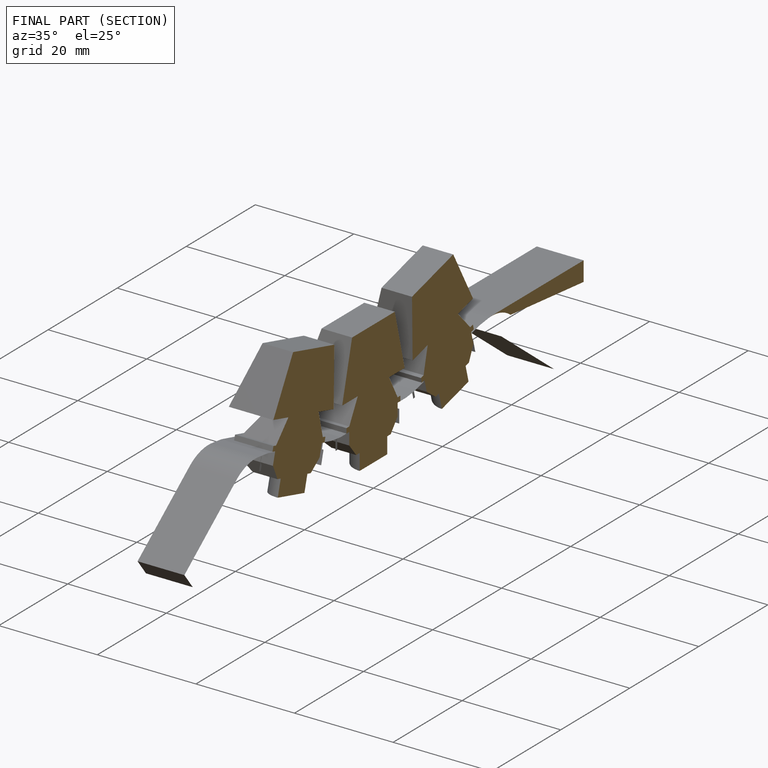
[diagram: finished part — half-section view (interior)]
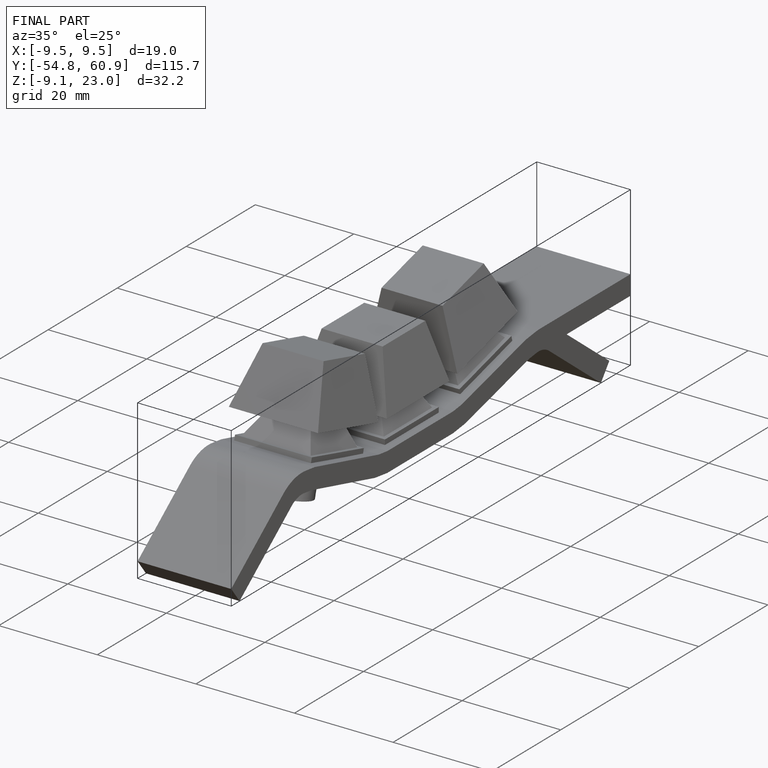
[diagram: finished part — iso view with bounding-box wireframe]
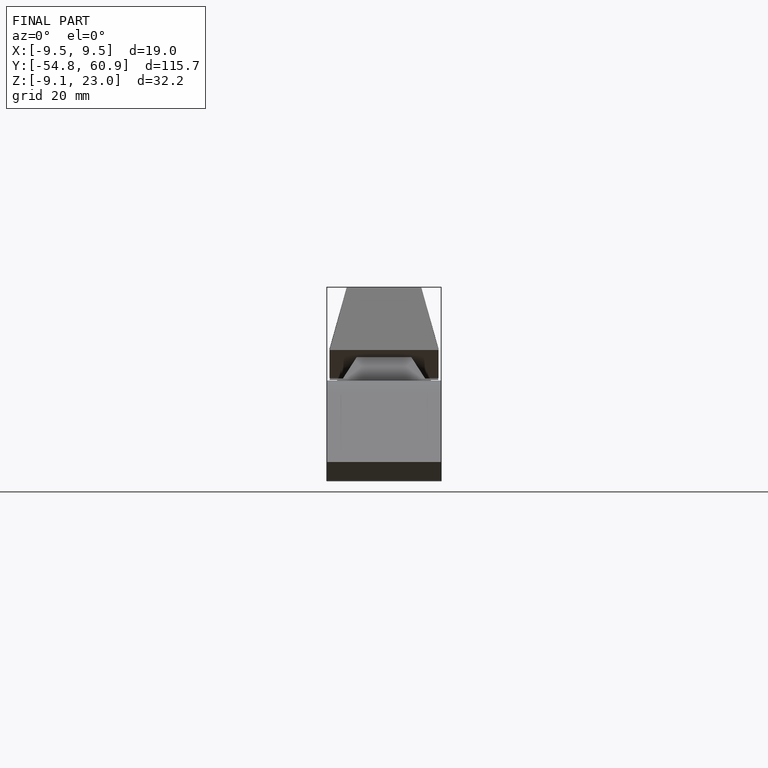
[diagram: finished part — front view with bounding-box wireframe]
